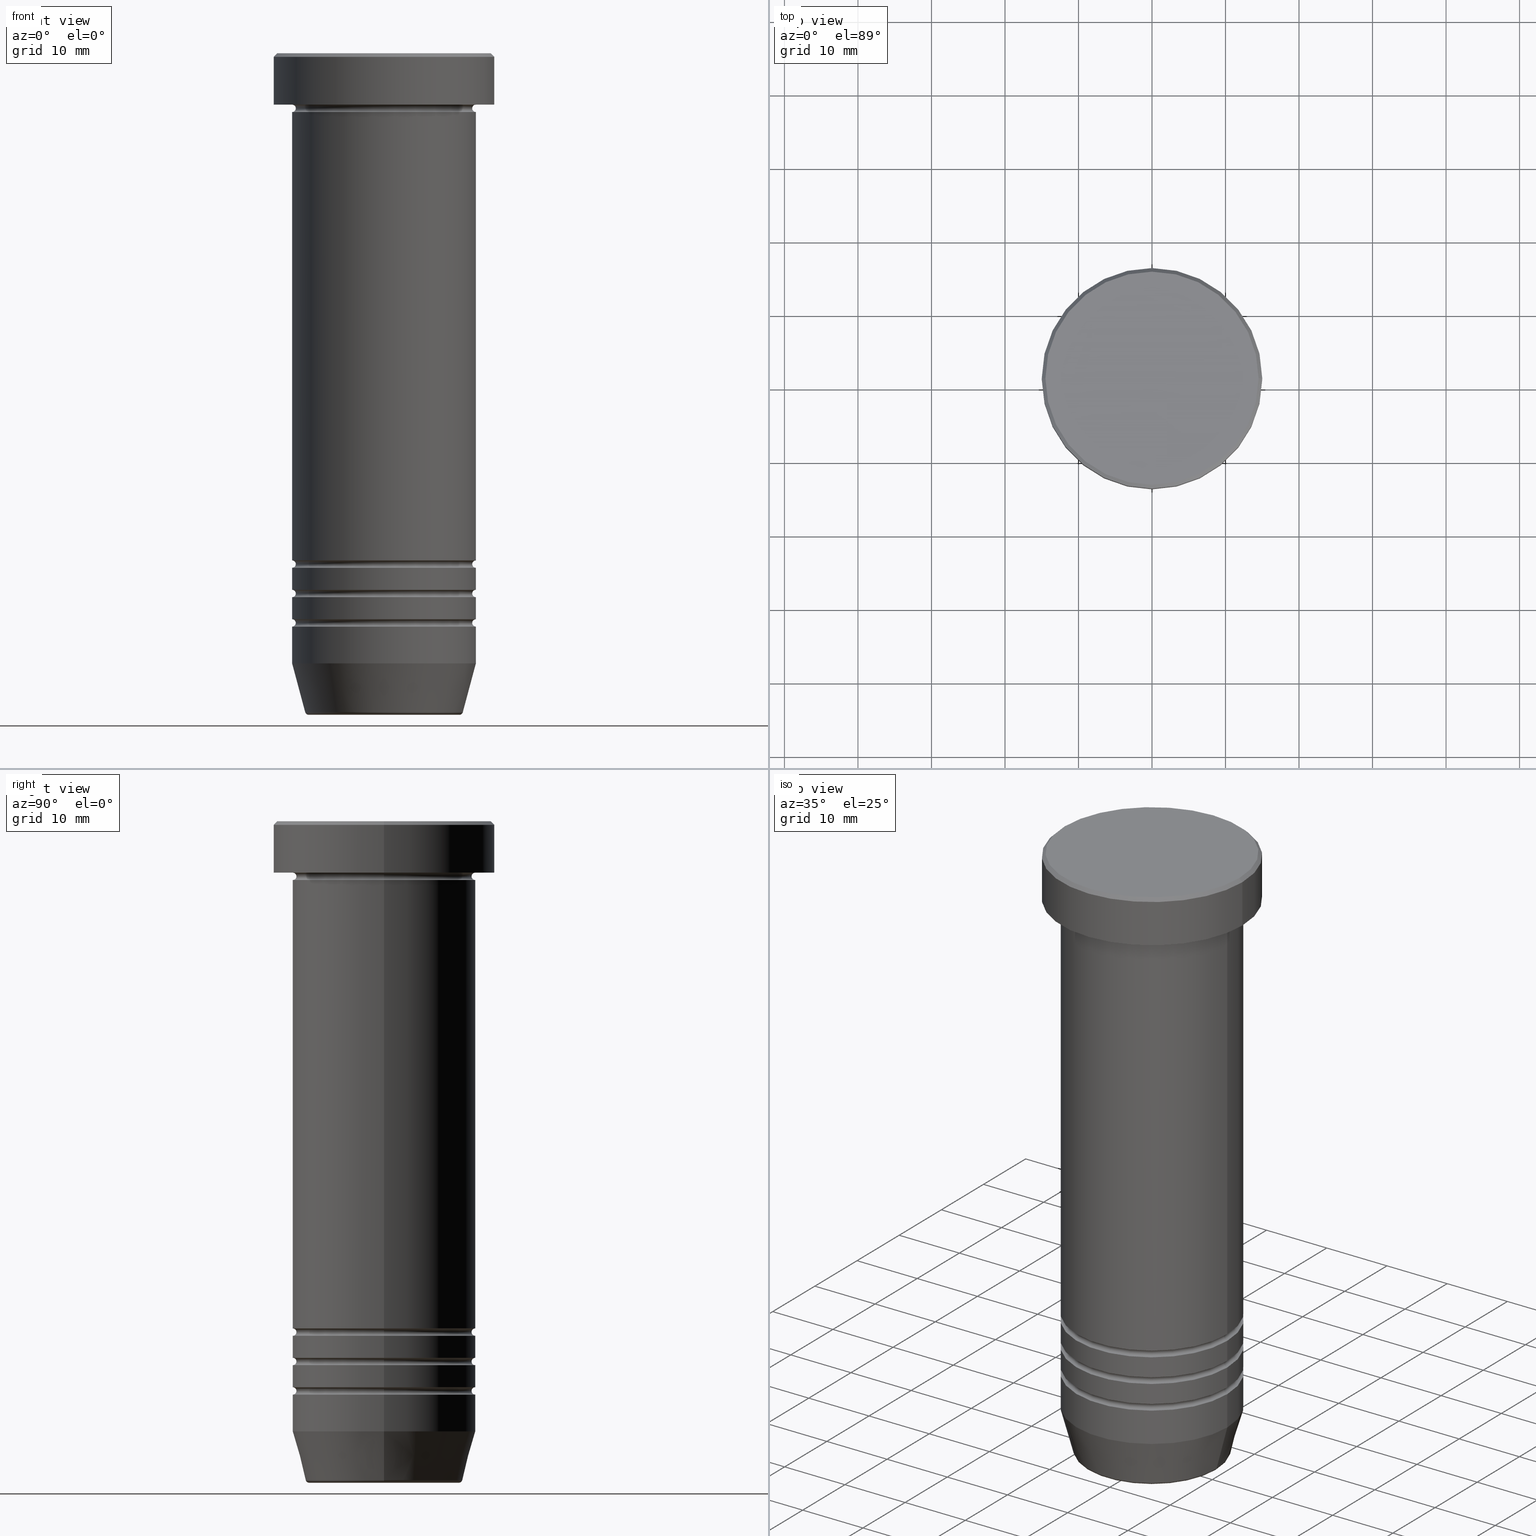
[diagram: canonical four-view strip — front | top / right | iso, engineering-drawing reading convention]
A machine part, canonical four-view strip (front | top / right | iso — engineering-drawing reading convention). The complete STEP part file that produces these views, byte-faithful:
ISO-10303-21;
HEADER;
FILE_DESCRIPTION (( 'STEP AP203' ),
    '1' );
FILE_NAME ('e726.STEP',
    '2024-01-02T20:27:29',
    ( '' ),
    ( '' ),
    'SwSTEP 2.0',
    'SolidWorks 2019',
    '' );
FILE_SCHEMA (( 'CONFIG_CONTROL_DESIGN' ));
ENDSEC;

DATA;
#1 = DIRECTION ( 'NONE',  ( -0.000000000000000000, -0.000000000000000000, 1.000000000000000000 ) ) ;
#2 = DIRECTION ( 'NONE',  ( -0.000000000000000000, -0.000000000000000000, 1.000000000000000000 ) ) ;
#3 = AXIS2_PLACEMENT_3D ( 'NONE', #425, #749, #55 ) ;
#4 = DIRECTION ( 'NONE',  ( -0.000000000000000000, -0.000000000000000000, 1.000000000000000000 ) ) ;
#5 = ORIENTED_EDGE ( 'NONE', *, *, #870, .F. ) ;
#6 = CARTESIAN_POINT ( 'NONE',  ( 12.00000000000000000, 0.000000000000000000, -7.500000000000000000 ) ) ;
#7 = DIRECTION ( 'NONE',  ( -0.000000000000000000, -0.000000000000000000, 1.000000000000000000 ) ) ;
#8 = ORIENTED_EDGE ( 'NONE', *, *, #121, .T. ) ;
#9 = ORIENTED_EDGE ( 'NONE', *, *, #566, .T. ) ;
#10 = CARTESIAN_POINT ( 'NONE',  ( 12.49999999999999645, 0.000000000000000000, -69.49999999999998579 ) ) ;
#11 = ADVANCED_FACE ( 'NONE', ( #210 ), #273, .T. ) ;
#12 = AXIS2_PLACEMENT_3D ( 'NONE', #967, #92, #887 ) ;
#13 = ORIENTED_EDGE ( 'NONE', *, *, #108, .F. ) ;
#14 = AXIS2_PLACEMENT_3D ( 'NONE', #751, #932, #341 ) ;
#15 = FACE_OUTER_BOUND ( 'NONE', #905, .T. ) ;
#16 = DIRECTION ( 'NONE',  ( -1.224646799147353207E-16, 1.000000000000000000, 0.000000000000000000 ) ) ;
#17 = DIRECTION ( 'NONE',  ( -0.000000000000000000, -0.000000000000000000, 1.000000000000000000 ) ) ;
#18 = ADVANCED_FACE ( 'NONE', ( #226 ), #507, .T. ) ;
#19 = ORIENTED_EDGE ( 'NONE', *, *, #435, .T. ) ;
#20 = TOROIDAL_SURFACE ( 'NONE', #876, 12.49999999999999645, 0.5000000000000000000 ) ;
#21 = DIRECTION ( 'NONE',  ( -0.000000000000000000, -0.000000000000000000, 1.000000000000000000 ) ) ;
#22 = DIRECTION ( 'NONE',  ( -0.000000000000000000, -0.000000000000000000, 1.000000000000000000 ) ) ;
#23 = CARTESIAN_POINT ( 'NONE',  ( 12.49999999999999645, 0.000000000000000000, -73.49999999999998579 ) ) ;
#24 = COORDINATED_UNIVERSAL_TIME_OFFSET ( 1, 0, .AHEAD. ) ;
#25 = EDGE_LOOP ( 'NONE', ( #408, #249, #522, #567 ) ) ;
#26 = ORIENTED_EDGE ( 'NONE', *, *, #566, .F. ) ;
#27 = CIRCLE ( 'NONE', #174, 0.5000000000000004441 ) ;
#28 = APPROVAL_PERSON_ORGANIZATION ( #162, #539, #839 ) ;
#29 = VECTOR ( 'NONE', #516, 1000.000000000000000 ) ;
#30 = ADVANCED_FACE ( 'NONE', ( #472 ), #369, .T. ) ;
#31 = DIRECTION ( 'NONE',  ( -1.000000000000000000, 0.000000000000000000, 0.000000000000000000 ) ) ;
#32 = LINE ( 'NONE', #444, #1018 ) ;
#33 = CALENDAR_DATE ( 2024, 2, 1 ) ;
#34 = ORIENTED_EDGE ( 'NONE', *, *, #989, .F. ) ;
#35 = ORIENTED_EDGE ( 'NONE', *, *, #889, .T. ) ;
#36 = CARTESIAN_POINT ( 'NONE',  ( 0.000000000000000000, 0.000000000000000000, -73.49999999999998579 ) ) ;
#37 = ADVANCED_FACE ( 'NONE', ( #549 ), #590, .F. ) ;
#38 = AXIS2_PLACEMENT_3D ( 'NONE', #969, #321, #893 ) ;
#39 = DIRECTION ( 'NONE',  ( 0.000000000000000000, 0.000000000000000000, -1.000000000000000000 ) ) ;
#40 = ORIENTED_EDGE ( 'NONE', *, *, #280, .F. ) ;
#41 = LINE ( 'NONE', #360, #976 ) ;
#42 = EDGE_CURVE ( 'NONE', #353, #1049, #315, .T. ) ;
#43 = CARTESIAN_POINT ( 'NONE',  ( 0.000000000000000000, 0.000000000000000000, 0.000000000000000000 ) ) ;
#44 = DIRECTION ( 'NONE',  ( 0.000000000000000000, 0.000000000000000000, -1.000000000000000000 ) ) ;
#45 = AXIS2_PLACEMENT_3D ( 'NONE', #977, #324, #647 ) ;
#46 = CIRCLE ( 'NONE', #639, 0.5000000000000004441 ) ;
#47 = DATE_AND_TIME ( #708, #851 ) ;
#48 = CARTESIAN_POINT ( 'NONE',  ( -12.50000000000000000, 1.530808498934191521E-15, -77.99999999999998579 ) ) ;
#49 = EDGE_CURVE ( 'NONE', #711, #89, #536, .T. ) ;
#50 = FACE_OUTER_BOUND ( 'NONE', #231, .T. ) ;
#51 = DIRECTION ( 'NONE',  ( 0.000000000000000000, 0.000000000000000000, -1.000000000000000000 ) ) ;
#52 = LINE ( 'NONE', #610, #819 ) ;
#53 = CARTESIAN_POINT ( 'NONE',  ( 12.49999999999999645, 1.530808498934191127E-15, -73.49999999999998579 ) ) ;
#54 = VERTEX_POINT ( 'NONE', #709 ) ;
#55 = DIRECTION ( 'NONE',  ( 1.000000000000000000, 0.000000000000000000, 0.000000000000000000 ) ) ;
#56 = VECTOR ( 'NONE', #690, 1000.000000000000000 ) ;
#57 = ADVANCED_FACE ( 'NONE', ( #1047 ), #874, .T. ) ;
#58 = CARTESIAN_POINT ( 'NONE',  ( -12.49999999999999822, 1.530808498934191324E-15, -72.99999999999998579 ) ) ;
#59 = PERSON_AND_ORGANIZATION_ROLE ( 'design_owner' ) ;
#60 = LINE ( 'NONE', #958, #481 ) ;
#61 = TOROIDAL_SURFACE ( 'NONE', #287, 12.49999999999999645, 0.5000000000000000000 ) ;
#62 = CIRCLE ( 'NONE', #205, 12.50000000000000000 ) ;
#63 = DIRECTION ( 'NONE',  ( -0.000000000000000000, -0.000000000000000000, 1.000000000000000000 ) ) ;
#64 = DIRECTION ( 'NONE',  ( -1.000000000000000000, 0.000000000000000000, 0.000000000000000000 ) ) ;
#65 = ORIENTED_EDGE ( 'NONE', *, *, #680, .T. ) ;
#66 = CARTESIAN_POINT ( 'NONE',  ( -12.49999999999999645, 1.530808498934191127E-15, 0.000000000000000000 ) ) ;
#67 = CARTESIAN_POINT ( 'NONE',  ( -12.50000000000000000, 1.530808498934191521E-15, -7.500000000000000000 ) ) ;
#68 = CIRCLE ( 'NONE', #123, 15.00000000000000000 ) ;
#69 = VECTOR ( 'NONE', #759, 1000.000000000000000 ) ;
#70 = COORDINATED_UNIVERSAL_TIME_OFFSET ( 1, 0, .AHEAD. ) ;
#71 = ORIENTED_EDGE ( 'NONE', *, *, #805, .F. ) ;
#72 = AXIS2_PLACEMENT_3D ( 'NONE', #603, #859, #211 ) ;
#73 = DIRECTION ( 'NONE',  ( -0.000000000000000000, -0.000000000000000000, 1.000000000000000000 ) ) ;
#74 = EDGE_CURVE ( 'NONE', #505, #711, #742, .T. ) ;
#75 = EDGE_LOOP ( 'NONE', ( #268, #173, #633, #825 ) ) ;
#76 = DIRECTION ( 'NONE',  ( 1.000000000000000000, 0.000000000000000000, 0.000000000000000000 ) ) ;
#77 = ORIENTED_EDGE ( 'NONE', *, *, #580, .T. ) ;
#78 = FACE_OUTER_BOUND ( 'NONE', #429, .T. ) ;
#79 = CIRCLE ( 'NONE', #780, 0.5000000000000004441 ) ;
#80 = APPLICATION_CONTEXT ( 'configuration controlled 3d designs of mechanical parts and assemblies' ) ;
#81 = TOROIDAL_SURFACE ( 'NONE', #869, 12.50000000000000000, 0.5000000000000000000 ) ;
#82 = EDGE_CURVE ( 'NONE', #284, #711, #452, .T. ) ;
#83 = DIRECTION ( 'NONE',  ( 1.000000000000000000, 0.000000000000000000, 0.000000000000000000 ) ) ;
#84 = ORIENTED_EDGE ( 'NONE', *, *, #714, .T. ) ;
#85 = DIRECTION ( 'NONE',  ( -0.000000000000000000, -1.000000000000000000, -0.000000000000000000 ) ) ;
#86 = VERTEX_POINT ( 'NONE', #58 ) ;
#87 = CC_DESIGN_DATE_AND_TIME_ASSIGNMENT ( #768, #631, ( #588 ) ) ;
#88 = DIRECTION ( 'NONE',  ( 1.000000000000000000, 0.000000000000000000, 0.000000000000000000 ) ) ;
#89 = VERTEX_POINT ( 'NONE', #48 ) ;
#90 = EDGE_CURVE ( 'NONE', #918, #618, #919, .T. ) ;
#91 = CARTESIAN_POINT ( 'NONE',  ( 0.000000000000000000, 0.000000000000000000, 0.000000000000000000 ) ) ;
#92 = DIRECTION ( 'NONE',  ( -0.000000000000000000, -0.000000000000000000, 1.000000000000000000 ) ) ;
#93 = ORIENTED_EDGE ( 'NONE', *, *, #280, .T. ) ;
#94 = FACE_OUTER_BOUND ( 'NONE', #1012, .T. ) ;
#95 = CARTESIAN_POINT ( 'NONE',  ( 14.50000000000000355, 1.806354028742346196E-15, 0.000000000000000000 ) ) ;
#96 = ORIENTED_EDGE ( 'NONE', *, *, #659, .T. ) ;
#97 = AXIS2_PLACEMENT_3D ( 'NONE', #732, #806, #486 ) ;
#98 = VERTEX_POINT ( 'NONE', #866 ) ;
#99 = AXIS2_PLACEMENT_3D ( 'NONE', #242, #811, #409 ) ;
#100 = DIRECTION ( 'NONE',  ( 1.000000000000000000, 0.000000000000000000, 0.000000000000000000 ) ) ;
#101 = VERTEX_POINT ( 'NONE', #687 ) ;
#102 = CARTESIAN_POINT ( 'NONE',  ( 0.000000000000000000, 0.000000000000000000, -73.49999999999998579 ) ) ;
#103 = AXIS2_PLACEMENT_3D ( 'NONE', #261, #736, #655 ) ;
#104 = LINE ( 'NONE', #910, #606 ) ;
#105 = PERSON_AND_ORGANIZATION_ROLE ( 'design_supplier' ) ;
#106 = EDGE_LOOP ( 'NONE', ( #168, #331, #65, #320 ) ) ;
#107 = ORIENTED_EDGE ( 'NONE', *, *, #674, .F. ) ;
#108 = EDGE_CURVE ( 'NONE', #523, #912, #937, .T. ) ;
#109 = DIRECTION ( 'NONE',  ( -1.000000000000000000, 0.000000000000000000, -0.000000000000000000 ) ) ;
#110 = DIRECTION ( 'NONE',  ( -0.000000000000000000, -0.000000000000000000, 1.000000000000000000 ) ) ;
#111 = DIRECTION ( 'NONE',  ( 1.000000000000000000, 0.000000000000000000, 0.000000000000000000 ) ) ;
#112 = ORIENTED_EDGE ( 'NONE', *, *, #74, .T. ) ;
#113 = ADVANCED_FACE ( 'NONE', ( #291 ), #294, .T. ) ;
#114 = AXIS2_PLACEMENT_3D ( 'NONE', #534, #864, #372 ) ;
#115 = DIRECTION ( 'NONE',  ( -0.000000000000000000, -0.000000000000000000, 1.000000000000000000 ) ) ;
#116 = DIRECTION ( 'NONE',  ( 1.000000000000000000, 0.000000000000000000, 0.000000000000000000 ) ) ;
#117 = DESIGN_CONTEXT ( 'detailed design', #308, 'design' ) ;
#118 = ORIENTED_EDGE ( 'NONE', *, *, #487, .F. ) ;
#119 = DIRECTION ( 'NONE',  ( -0.000000000000000000, -0.000000000000000000, 1.000000000000000000 ) ) ;
#120 = CARTESIAN_POINT ( 'NONE',  ( 0.000000000000000000, 0.000000000000000000, -72.99999999999998579 ) ) ;
#121 = EDGE_CURVE ( 'NONE', #243, #652, #798, .T. ) ;
#122 = MANIFOLD_SOLID_BREP ( 'Zaoblit5', #250 ) ;
#123 = AXIS2_PLACEMENT_3D ( 'NONE', #418, #515, #431 ) ;
#124 = DIRECTION ( 'NONE',  ( -0.000000000000000000, -0.000000000000000000, 1.000000000000000000 ) ) ;
#125 = DIRECTION ( 'NONE',  ( 1.000000000000000000, 0.000000000000000000, 0.000000000000000000 ) ) ;
#126 = CARTESIAN_POINT ( 'NONE',  ( -12.49999999999999289, 1.530808498934190930E-15, -68.99999999999998579 ) ) ;
#127 = CARTESIAN_POINT ( 'NONE',  ( 0.000000000000000000, 0.000000000000000000, -73.49999999999998579 ) ) ;
#128 = EDGE_CURVE ( 'NONE', #827, #833, #380, .T. ) ;
#129 = DIRECTION ( 'NONE',  ( -0.000000000000000000, -0.000000000000000000, 1.000000000000000000 ) ) ;
#130 = ORIENTED_EDGE ( 'NONE', *, *, #875, .F. ) ;
#131 = DIRECTION ( 'NONE',  ( -0.000000000000000000, -0.000000000000000000, 1.000000000000000000 ) ) ;
#132 = VERTEX_POINT ( 'NONE', #739 ) ;
#133 = FACE_OUTER_BOUND ( 'NONE', #25, .T. ) ;
#134 = AXIS2_PLACEMENT_3D ( 'NONE', #493, #85, #410 ) ;
#135 = PRODUCT_DEFINITION_FORMATION_WITH_SPECIFIED_SOURCE ( 'LIBOVOLN�', '', #997, .NOT_KNOWN. ) ;
#136 = CIRCLE ( 'NONE', #921, 12.49999999999999289 ) ;
#137 = CARTESIAN_POINT ( 'NONE',  ( 0.000000000000000000, 0.000000000000000000, 0.000000000000000000 ) ) ;
#138 = APPROVAL_ROLE ( '' ) ;
#139 = DIRECTION ( 'NONE',  ( 0.000000000000000000, 0.000000000000000000, -1.000000000000000000 ) ) ;
#140 = ORIENTED_EDGE ( 'NONE', *, *, #465, .T. ) ;
#141 = CARTESIAN_POINT ( 'NONE',  ( 12.50000000000000000, 0.000000000000000000, 0.000000000000000000 ) ) ;
#142 = DIRECTION ( 'NONE',  ( 0.000000000000000000, 0.000000000000000000, -1.000000000000000000 ) ) ;
#143 = CARTESIAN_POINT ( 'NONE',  ( -10.62435565298213547, 1.301108314342765923E-15, -90.00000000000000000 ) ) ;
#144 = EDGE_CURVE ( 'NONE', #54, #782, #204, .T. ) ;
#145 = FACE_OUTER_BOUND ( 'NONE', #359, .T. ) ;
#146 = CIRCLE ( 'NONE', #820, 12.50000000000000000 ) ;
#147 = DIRECTION ( 'NONE',  ( -0.000000000000000000, -0.000000000000000000, 1.000000000000000000 ) ) ;
#148 = ORIENTED_EDGE ( 'NONE', *, *, #271, .F. ) ;
#149 = PERSON_AND_ORGANIZATION ( #942, #920 ) ;
#150 = CIRCLE ( 'NONE', #134, 0.5000000000000004441 ) ;
#151 = DIRECTION ( 'NONE',  ( -0.000000000000000000, -0.000000000000000000, 1.000000000000000000 ) ) ;
#152 = LOCAL_TIME ( 21, 27, 29.00000000000000000, #24 ) ;
#153 = DIRECTION ( 'NONE',  ( -1.000000000000000000, 1.224646799147353454E-16, 0.000000000000000000 ) ) ;
#154 = AXIS2_PLACEMENT_3D ( 'NONE', #815, #723, #83 ) ;
#155 = EDGE_LOOP ( 'NONE', ( #178, #770, #643, #938 ) ) ;
#156 = DIRECTION ( 'NONE',  ( 1.000000000000000000, 0.000000000000000000, 0.000000000000000000 ) ) ;
#157 = VERTEX_POINT ( 'NONE', #337 ) ;
#158 = CARTESIAN_POINT ( 'NONE',  ( 0.000000000000000000, 0.000000000000000000, 0.000000000000000000 ) ) ;
#159 = ADVANCED_FACE ( 'NONE', ( #478 ), #604, .F. ) ;
#160 = CARTESIAN_POINT ( 'NONE',  ( -10.24069215899265473, 1.254123087356375438E-15, -89.50000000000000000 ) ) ;
#161 = ORIENTED_EDGE ( 'NONE', *, *, #1060, .F. ) ;
#162 = PERSON_AND_ORGANIZATION ( #942, #920 ) ;
#163 = CARTESIAN_POINT ( 'NONE',  ( 0.000000000000000000, 0.000000000000000000, -90.00000000000000000 ) ) ;
#164 = VERTEX_POINT ( 'NONE', #637 ) ;
#165 = DIRECTION ( 'NONE',  ( 0.000000000000000000, 0.000000000000000000, -1.000000000000000000 ) ) ;
#166 = ORIENTED_EDGE ( 'NONE', *, *, #908, .F. ) ;
#167 = DIRECTION ( 'NONE',  ( -0.000000000000000000, -0.000000000000000000, 1.000000000000000000 ) ) ;
#168 = ORIENTED_EDGE ( 'NONE', *, *, #881, .T. ) ;
#169 = DIRECTION ( 'NONE',  ( -1.000000000000000000, 0.000000000000000000, -0.000000000000000000 ) ) ;
#170 = VECTOR ( 'NONE', #1027, 1000.000000000000000 ) ;
#171 = DIRECTION ( 'NONE',  ( -1.000000000000000000, 1.224646799147353454E-16, 0.000000000000000000 ) ) ;
#172 = LOCAL_TIME ( 21, 27, 29.00000000000000000, #754 ) ;
#173 = ORIENTED_EDGE ( 'NONE', *, *, #193, .T. ) ;
#174 = AXIS2_PLACEMENT_3D ( 'NONE', #470, #605, #1020 ) ;
#175 = ORIENTED_EDGE ( 'NONE', *, *, #435, .F. ) ;
#176 = EDGE_CURVE ( 'NONE', #215, #827, #474, .T. ) ;
#177 = CARTESIAN_POINT ( 'NONE',  ( 11.99999999999999645, 0.000000000000000000, -73.49999999999998579 ) ) ;
#178 = ORIENTED_EDGE ( 'NONE', *, *, #860, .T. ) ;
#179 = DIRECTION ( 'NONE',  ( 0.2588190451025213501, 0.000000000000000000, 0.9659258262890680902 ) ) ;
#180 = ORIENTED_EDGE ( 'NONE', *, *, #935, .F. ) ;
#181 = ADVANCED_FACE ( 'NONE', ( #577 ), #251, .F. ) ;
#182 = DIRECTION ( 'NONE',  ( -0.000000000000000000, -0.000000000000000000, 1.000000000000000000 ) ) ;
#183 = CARTESIAN_POINT ( 'NONE',  ( -12.49999999999999645, 1.530808498934191127E-15, -77.49999999999998579 ) ) ;
#184 = EDGE_LOOP ( 'NONE', ( #405, #571, #9, #740 ) ) ;
#185 = CARTESIAN_POINT ( 'NONE',  ( 0.000000000000000000, 0.000000000000000000, -72.99999999999998579 ) ) ;
#186 = CARTESIAN_POINT ( 'NONE',  ( -15.00000000000000000, 1.836970198721029589E-15, -6.999999999999998224 ) ) ;
#187 = DIRECTION ( 'NONE',  ( 0.000000000000000000, 0.000000000000000000, -1.000000000000000000 ) ) ;
#188 = APPROVAL_STATUS ( 'not_yet_approved' ) ;
#189 = AXIS2_PLACEMENT_3D ( 'NONE', #917, #194, #187 ) ;
#190 = TOROIDAL_SURFACE ( 'NONE', #783, 10.24069215899265473, 0.5000000000000000000 ) ;
#191 = DIRECTION ( 'NONE',  ( 1.000000000000000000, 0.000000000000000000, 0.000000000000000000 ) ) ;
#192 = CARTESIAN_POINT ( 'NONE',  ( 0.000000000000000000, 0.000000000000000000, -89.50000000000000000 ) ) ;
#193 = EDGE_CURVE ( 'NONE', #913, #284, #510, .T. ) ;
#194 = DIRECTION ( 'NONE',  ( -0.000000000000000000, -1.000000000000000000, -0.000000000000000000 ) ) ;
#195 = PERSON_AND_ORGANIZATION ( #942, #920 ) ;
#196 = CARTESIAN_POINT ( 'NONE',  ( -12.49999999999999289, 1.530808498934190930E-15, -76.99999999999998579 ) ) ;
#197 = TOROIDAL_SURFACE ( 'NONE', #564, 12.49999999999999645, 0.5000000000000000000 ) ;
#198 = DIRECTION ( 'NONE',  ( 0.000000000000000000, 0.000000000000000000, -1.000000000000000000 ) ) ;
#199 = CIRCLE ( 'NONE', #794, 12.50000000000000000 ) ;
#200 = VERTEX_POINT ( 'NONE', #554 ) ;
#201 = EDGE_CURVE ( 'NONE', #89, #353, #150, .T. ) ;
#202 = ORIENTED_EDGE ( 'NONE', *, *, #989, .T. ) ;
#203 = DIRECTION ( 'NONE',  ( -0.000000000000000000, -0.000000000000000000, 1.000000000000000000 ) ) ;
#204 = CIRCLE ( 'NONE', #457, 0.5000000000000004441 ) ;
#205 = AXIS2_PLACEMENT_3D ( 'NONE', #589, #832, #847 ) ;
#206 = EDGE_CURVE ( 'NONE', #652, #243, #981, .T. ) ;
#207 = CARTESIAN_POINT ( 'NONE',  ( 0.000000000000000000, 0.000000000000000000, -7.500000000000000000 ) ) ;
#208 = DIRECTION ( 'NONE',  ( 1.000000000000000000, 0.000000000000000000, 0.000000000000000000 ) ) ;
#209 = ORIENTED_EDGE ( 'NONE', *, *, #941, .T. ) ;
#210 = FACE_OUTER_BOUND ( 'NONE', #248, .T. ) ;
#211 = DIRECTION ( 'NONE',  ( 1.000000000000000000, 0.000000000000000000, 0.000000000000000000 ) ) ;
#212 = DIRECTION ( 'NONE',  ( 1.000000000000000000, 0.000000000000000000, 0.000000000000000000 ) ) ;
#213 = CIRCLE ( 'NONE', #3, 12.50000000000000000 ) ;
#214 = FACE_OUTER_BOUND ( 'NONE', #290, .T. ) ;
#215 = VERTEX_POINT ( 'NONE', #393 ) ;
#216 = DIRECTION ( 'NONE',  ( 1.000000000000000000, 0.000000000000000000, 0.000000000000000000 ) ) ;
#217 = DIRECTION ( 'NONE',  ( 1.000000000000000000, 0.000000000000000000, 0.000000000000000000 ) ) ;
#218 = ORIENTED_EDGE ( 'NONE', *, *, #496, .F. ) ;
#219 = DIRECTION ( 'NONE',  ( -0.000000000000000000, -0.000000000000000000, 1.000000000000000000 ) ) ;
#220 = DIRECTION ( 'NONE',  ( 0.000000000000000000, 0.000000000000000000, -1.000000000000000000 ) ) ;
#221 = CIRCLE ( 'NONE', #1057, 12.49999999999999289 ) ;
#222 = ADVANCED_FACE ( 'NONE', ( #713 ), #541, .F. ) ;
#223 = DIRECTION ( 'NONE',  ( 1.000000000000000000, 0.000000000000000000, 0.000000000000000000 ) ) ;
#224 = MECHANICAL_CONTEXT ( 'NONE', #80, 'mechanical' ) ;
#225 = CYLINDRICAL_SURFACE ( 'NONE', #669, 12.50000000000000000 ) ;
#226 = FACE_OUTER_BOUND ( 'NONE', #681, .T. ) ;
#227 = EDGE_CURVE ( 'NONE', #523, #803, #1054, .T. ) ;
#228 = ORIENTED_EDGE ( 'NONE', *, *, #128, .T. ) ;
#229 = APPROVAL_ROLE ( '' ) ;
#230 = DIRECTION ( 'NONE',  ( 1.000000000000000000, 0.000000000000000000, 0.000000000000000000 ) ) ;
#231 = EDGE_LOOP ( 'NONE', ( #396, #671, #285, #858 ) ) ;
#232 = LINE ( 'NONE', #66, #821 ) ;
#233 = CALENDAR_DATE ( 2024, 2, 1 ) ;
#234 = EDGE_CURVE ( 'NONE', #259, #913, #720, .T. ) ;
#235 = ORIENTED_EDGE ( 'NONE', *, *, #128, .F. ) ;
#236 = AXIS2_PLACEMENT_3D ( 'NONE', #1055, #895, #165 ) ;
#237 = AXIS2_PLACEMENT_3D ( 'NONE', #660, #581, #586 ) ;
#238 = CARTESIAN_POINT ( 'NONE',  ( -12.49999999999999645, 1.530808498934191127E-15, 0.000000000000000000 ) ) ;
#239 = DIRECTION ( 'NONE',  ( -1.000000000000000000, 0.000000000000000000, 0.000000000000000000 ) ) ;
#240 = CARTESIAN_POINT ( 'NONE',  ( 11.99999999999999645, 0.000000000000000000, -77.49999999999998579 ) ) ;
#241 = EDGE_LOOP ( 'NONE', ( #218, #939, #93, #354 ) ) ;
#242 = CARTESIAN_POINT ( 'NONE',  ( 0.000000000000000000, 0.000000000000000000, -82.99999999999998579 ) ) ;
#243 = VERTEX_POINT ( 'NONE', #247 ) ;
#244 = FACE_OUTER_BOUND ( 'NONE', #877, .T. ) ;
#245 = ORIENTED_EDGE ( 'NONE', *, *, #791, .F. ) ;
#246 = ADVANCED_FACE ( 'NONE', ( #666 ), #61, .F. ) ;
#247 = CARTESIAN_POINT ( 'NONE',  ( -12.50000000000000000, 1.530808498934191521E-15, -22.50000000000000000 ) ) ;
#248 = EDGE_LOOP ( 'NONE', ( #477, #865, #327, #482 ) ) ;
#249 = ORIENTED_EDGE ( 'NONE', *, *, #144, .T. ) ;
#250 = CLOSED_SHELL ( 'NONE', ( #775, #929, #837, #357, #352, #392, #615, #608, #738, #915, #311, #455, #57, #509, #758, #1046, #296, #524, #11, #18, #181, #37, #246, #719, #850, #551 ) ) ;
#251 = TOROIDAL_SURFACE ( 'NONE', #12, 12.49999999999999645, 0.5000000000000000000 ) ;
#252 = AXIS2_PLACEMENT_3D ( 'NONE', #158, #1, #318 ) ;
#253 = CC_DESIGN_APPROVAL ( #707, ( #994 ) ) ;
#254 = ORIENTED_EDGE ( 'NONE', *, *, #651, .T. ) ;
#255 = EDGE_CURVE ( 'NONE', #54, #523, #834, .T. ) ;
#256 = ORIENTED_EDGE ( 'NONE', *, *, #674, .T. ) ;
#257 = DIRECTION ( 'NONE',  ( 1.000000000000000000, 0.000000000000000000, 0.000000000000000000 ) ) ;
#258 = CARTESIAN_POINT ( 'NONE',  ( -15.00000000000000000, 1.836970198721029589E-15, -0.4999999999999970024 ) ) ;
#259 = VERTEX_POINT ( 'NONE', #856 ) ;
#260 = CIRCLE ( 'NONE', #355, 12.50000000000000000 ) ;
#261 = CARTESIAN_POINT ( 'NONE',  ( 0.000000000000000000, 0.000000000000000000, -77.49999999999998579 ) ) ;
#262 = CARTESIAN_POINT ( 'NONE',  ( 0.000000000000000000, 0.000000000000000000, -73.49999999999998579 ) ) ;
#263 = DIRECTION ( 'NONE',  ( 0.000000000000000000, 0.000000000000000000, -1.000000000000000000 ) ) ;
#264 = EDGE_CURVE ( 'NONE', #451, #284, #267, .T. ) ;
#265 = CARTESIAN_POINT ( 'NONE',  ( 12.49999999999999645, 1.530808498934191127E-15, -69.49999999999998579 ) ) ;
#266 = PERSON_AND_ORGANIZATION_ROLE ( 'creator' ) ;
#267 = CIRCLE ( 'NONE', #1001, 10.72365507213718416 ) ;
#268 = ORIENTED_EDGE ( 'NONE', *, *, #668, .F. ) ;
#269 = AXIS2_PLACEMENT_3D ( 'NONE', #521, #415, #916 ) ;
#270 = DIRECTION ( 'NONE',  ( -0.000000000000000000, -0.000000000000000000, 1.000000000000000000 ) ) ;
#271 = EDGE_CURVE ( 'NONE', #215, #1033, #886, .T. ) ;
#272 = ORIENTED_EDGE ( 'NONE', *, *, #812, .T. ) ;
#273 = CYLINDRICAL_SURFACE ( 'NONE', #654, 12.50000000000000000 ) ;
#274 = APPROVAL_PERSON_ORGANIZATION ( #949, #728, #138 ) ;
#275 = DIRECTION ( 'NONE',  ( 1.000000000000000000, 0.000000000000000000, 0.000000000000000000 ) ) ;
#276 = AXIS2_PLACEMENT_3D ( 'NONE', #678, #219, #936 ) ;
#277 = ORIENTED_EDGE ( 'NONE', *, *, #700, .F. ) ;
#278 = FACE_OUTER_BOUND ( 'NONE', #1011, .T. ) ;
#279 = FACE_OUTER_BOUND ( 'NONE', #934, .T. ) ;
#280 = EDGE_CURVE ( 'NONE', #555, #652, #513, .T. ) ;
#281 = ORIENTED_EDGE ( 'NONE', *, *, #340, .F. ) ;
#282 = DIRECTION ( 'NONE',  ( 1.000000000000000000, 0.000000000000000000, 0.000000000000000000 ) ) ;
#283 = CARTESIAN_POINT ( 'NONE',  ( 0.000000000000000000, 0.000000000000000000, -22.50000000000000000 ) ) ;
#284 = VERTEX_POINT ( 'NONE', #753 ) ;
#285 = ORIENTED_EDGE ( 'NONE', *, *, #74, .F. ) ;
#286 = EDGE_CURVE ( 'NONE', #101, #488, #32, .T. ) ;
#287 = AXIS2_PLACEMENT_3D ( 'NONE', #262, #925, #439 ) ;
#288 = CONICAL_SURFACE ( 'NONE', #888, 14.50000000000000355, 0.7853981633974466137 ) ;
#289 = CARTESIAN_POINT ( 'NONE',  ( 0.000000000000000000, 0.000000000000000000, -7.500000000000000000 ) ) ;
#290 = EDGE_LOOP ( 'NONE', ( #777, #667, #107, #698 ) ) ;
#291 = FACE_OUTER_BOUND ( 'NONE', #184, .T. ) ;
#292 = AXIS2_PLACEMENT_3D ( 'NONE', #699, #115, #282 ) ;
#293 = FACE_OUTER_BOUND ( 'NONE', #641, .T. ) ;
#294 = CYLINDRICAL_SURFACE ( 'NONE', #902, 15.00000000000000000 ) ;
#295 = CARTESIAN_POINT ( 'NONE',  ( 0.000000000000000000, 0.000000000000000000, -8.000000000000000000 ) ) ;
#296 = ADVANCED_FACE ( 'NONE', ( #279 ), #599, .F. ) ;
#297 = DIRECTION ( 'NONE',  ( -0.000000000000000000, -0.000000000000000000, 1.000000000000000000 ) ) ;
#298 = ORIENTED_EDGE ( 'NONE', *, *, #755, .F. ) ;
#299 = AXIS2_PLACEMENT_3D ( 'NONE', #961, #862, #125 ) ;
#300 = AXIS2_PLACEMENT_3D ( 'NONE', #305, #147, #799 ) ;
#301 = CC_DESIGN_APPROVAL ( #539, ( #135 ) ) ;
#302 = EDGE_CURVE ( 'NONE', #857, #353, #79, .T. ) ;
#303 = EDGE_LOOP ( 'NONE', ( #813, #325 ) ) ;
#304 = DIRECTION ( 'NONE',  ( -0.000000000000000000, -0.000000000000000000, 1.000000000000000000 ) ) ;
#305 = CARTESIAN_POINT ( 'NONE',  ( 0.000000000000000000, 0.000000000000000000, 0.000000000000000000 ) ) ;
#306 = ADVANCED_FACE ( 'NONE', ( #776 ), #225, .T. ) ;
#307 = DIRECTION ( 'NONE',  ( 1.000000000000000000, 0.000000000000000000, 0.000000000000000000 ) ) ;
#308 = APPLICATION_CONTEXT ( 'configuration controlled 3d designs of mechanical parts and assemblies' ) ;
#309 = ORIENTED_EDGE ( 'NONE', *, *, #42, .F. ) ;
#310 = DIRECTION ( 'NONE',  ( -0.000000000000000000, -0.000000000000000000, 1.000000000000000000 ) ) ;
#311 = ADVANCED_FACE ( 'NONE', ( #1015 ), #361, .T. ) ;
#312 = DIRECTION ( 'NONE',  ( 0.000000000000000000, 0.000000000000000000, 1.000000000000000000 ) ) ;
#313 = FACE_OUTER_BOUND ( 'NONE', #560, .T. ) ;
#314 = ORIENTED_EDGE ( 'NONE', *, *, #975, .T. ) ;
#315 = CIRCLE ( 'NONE', #572, 11.99999999999999645 ) ;
#316 =( GEOMETRIC_REPRESENTATION_CONTEXT ( 3 ) GLOBAL_UNCERTAINTY_ASSIGNED_CONTEXT ( ( #933 ) ) GLOBAL_UNIT_ASSIGNED_CONTEXT ( ( #397, #973, #814 ) ) REPRESENTATION_CONTEXT ( 'NONE', 'WORKASPACE' ) );
#317 = AXIS2_PLACEMENT_3D ( 'NONE', #960, #310, #642 ) ;
#318 = DIRECTION ( 'NONE',  ( 1.000000000000000000, 0.000000000000000000, 0.000000000000000000 ) ) ;
#319 = DIRECTION ( 'NONE',  ( 0.000000000000000000, 0.000000000000000000, -1.000000000000000000 ) ) ;
#320 = ORIENTED_EDGE ( 'NONE', *, *, #533, .F. ) ;
#321 = DIRECTION ( 'NONE',  ( 0.000000000000000000, 0.000000000000000000, -1.000000000000000000 ) ) ;
#322 = ORIENTED_EDGE ( 'NONE', *, *, #975, .F. ) ;
#323 = CYLINDRICAL_SURFACE ( 'NONE', #252, 12.49999999999999645 ) ;
#324 = DIRECTION ( 'NONE',  ( 0.000000000000000000, 0.000000000000000000, -1.000000000000000000 ) ) ;
#325 = ORIENTED_EDGE ( 'NONE', *, *, #1060, .T. ) ;
#326 = CIRCLE ( 'NONE', #931, 12.00000000000000000 ) ;
#327 = ORIENTED_EDGE ( 'NONE', *, *, #286, .T. ) ;
#328 = FACE_OUTER_BOUND ( 'NONE', #241, .T. ) ;
#329 = EDGE_CURVE ( 'NONE', #86, #733, #52, .T. ) ;
#330 = DIRECTION ( 'NONE',  ( 1.000000000000000000, 0.000000000000000000, 0.000000000000000000 ) ) ;
#331 = ORIENTED_EDGE ( 'NONE', *, *, #547, .T. ) ;
#332 = EDGE_LOOP ( 'NONE', ( #416, #447, #988, #582 ) ) ;
#333 = DIRECTION ( 'NONE',  ( -0.000000000000000000, -0.000000000000000000, 1.000000000000000000 ) ) ;
#334 = CARTESIAN_POINT ( 'NONE',  ( 0.000000000000000000, 0.000000000000000000, 0.000000000000000000 ) ) ;
#335 = AXIS2_PLACEMENT_3D ( 'NONE', #658, #7, #330 ) ;
#336 = CIRCLE ( 'NONE', #269, 11.99999999999999645 ) ;
#337 = CARTESIAN_POINT ( 'NONE',  ( -12.50000000000000000, 0.000000000000000000, -6.999999999999999112 ) ) ;
#338 = DIRECTION ( 'NONE',  ( -1.000000000000000000, 1.224646799147353454E-16, 0.000000000000000000 ) ) ;
#339 = AXIS2_PLACEMENT_3D ( 'NONE', #872, #597, #375 ) ;
#340 = EDGE_CURVE ( 'NONE', #928, #200, #947, .T. ) ;
#341 = DIRECTION ( 'NONE',  ( 1.000000000000000000, 0.000000000000000000, 0.000000000000000000 ) ) ;
#342 = APPROVAL_DATE_TIME ( #1010, #539 ) ;
#343 = ORIENTED_EDGE ( 'NONE', *, *, #469, .F. ) ;
#344 = EDGE_CURVE ( 'NONE', #54, #157, #27, .T. ) ;
#345 = DIRECTION ( 'NONE',  ( 0.000000000000000000, -1.000000000000000000, 0.000000000000000000 ) ) ;
#346 = ORIENTED_EDGE ( 'NONE', *, *, #870, .T. ) ;
#347 = AXIS2_PLACEMENT_3D ( 'NONE', #1038, #124, #1031 ) ;
#348 = EDGE_LOOP ( 'NONE', ( #845, #883, #706, #459 ) ) ;
#349 = CIRCLE ( 'NONE', #854, 12.50000000000000000 ) ;
#350 = DIRECTION ( 'NONE',  ( 0.000000000000000000, 0.000000000000000000, -1.000000000000000000 ) ) ;
#351 = FACE_OUTER_BOUND ( 'NONE', #332, .T. ) ;
#352 = ADVANCED_FACE ( 'NONE', ( #943 ), #1002, .F. ) ;
#353 = VERTEX_POINT ( 'NONE', #1026 ) ;
#354 = ORIENTED_EDGE ( 'NONE', *, *, #121, .F. ) ;
#355 = AXIS2_PLACEMENT_3D ( 'NONE', #990, #841, #846 ) ;
#356 = DIRECTION ( 'NONE',  ( 1.000000000000000000, 0.000000000000000000, 0.000000000000000000 ) ) ;
#357 = ADVANCED_FACE ( 'NONE', ( #214 ), #835, .F. ) ;
#358 = EDGE_LOOP ( 'NONE', ( #570, #982, #202, #600 ) ) ;
#359 = EDGE_LOOP ( 'NONE', ( #385, #840 ) ) ;
#360 = CARTESIAN_POINT ( 'NONE',  ( 12.49999999999999645, 0.000000000000000000, 0.000000000000000000 ) ) ;
#361 = CYLINDRICAL_SURFACE ( 'NONE', #347, 12.50000000000000000 ) ;
#362 = ORIENTED_EDGE ( 'NONE', *, *, #601, .T. ) ;
#363 = CLOSED_SHELL ( 'NONE', ( #1029, #387, #955, #766, #946, #413, #30, #113, #796, #306, #159, #222, #640 ) ) ;
#364 = DIRECTION ( 'NONE',  ( 1.000000000000000000, 0.000000000000000000, 0.000000000000000000 ) ) ;
#365 = AXIS2_PLACEMENT_3D ( 'NONE', #1032, #297, #540 ) ;
#366 = VECTOR ( 'NONE', #906, 1000.000000000000000 ) ;
#367 = CIRCLE ( 'NONE', #514, 10.72365507213718416 ) ;
#368 = CARTESIAN_POINT ( 'NONE',  ( 0.000000000000000000, 0.000000000000000000, -7.500000000000000000 ) ) ;
#369 = PLANE ( 'NONE',  #852 ) ;
#370 = EDGE_CURVE ( 'NONE', #132, #98, #349, .T. ) ;
#371 = CARTESIAN_POINT ( 'NONE',  ( 11.99999999999999645, 0.000000000000000000, -69.49999999999998579 ) ) ;
#372 = DIRECTION ( 'NONE',  ( 1.000000000000000000, 0.000000000000000000, 0.000000000000000000 ) ) ;
#373 = AXIS2_PLACEMENT_3D ( 'NONE', #207, #119, #537 ) ;
#374 = DIRECTION ( 'NONE',  ( -0.000000000000000000, -0.000000000000000000, 1.000000000000000000 ) ) ;
#375 = DIRECTION ( 'NONE',  ( 1.000000000000000000, 0.000000000000000000, 0.000000000000000000 ) ) ;
#376 = EDGE_CURVE ( 'NONE', #607, #663, #512, .T. ) ;
#377 = DIRECTION ( 'NONE',  ( -0.000000000000000000, -0.000000000000000000, 1.000000000000000000 ) ) ;
#378 = DIRECTION ( 'NONE',  ( -0.000000000000000000, -0.000000000000000000, 1.000000000000000000 ) ) ;
#379 = CARTESIAN_POINT ( 'NONE',  ( 0.000000000000000000, 0.000000000000000000, -77.49999999999998579 ) ) ;
#380 = CIRCLE ( 'NONE', #701, 0.5000000000000004441 ) ;
#381 = APPLICATION_PROTOCOL_DEFINITION ( 'international standard', 'config_control_design', 1994, #308 ) ;
#382 = VECTOR ( 'NONE', #73, 1000.000000000000000 ) ;
#383 = CARTESIAN_POINT ( 'NONE',  ( -12.50000000000000000, 1.530808498934191521E-15, -69.99999999999998579 ) ) ;
#384 = AXIS2_PLACEMENT_3D ( 'NONE', #538, #51, #779 ) ;
#385 = ORIENTED_EDGE ( 'NONE', *, *, #234, .T. ) ;
#386 = CARTESIAN_POINT ( 'NONE',  ( 0.000000000000000000, 0.000000000000000000, -77.49999999999998579 ) ) ;
#387 = ADVANCED_FACE ( 'NONE', ( #293 ), #81, .F. ) ;
#388 = DIRECTION ( 'NONE',  ( 0.000000000000000000, -0.000000000000000000, 1.000000000000000000 ) ) ;
#389 = COORDINATED_UNIVERSAL_TIME_OFFSET ( 1, 0, .AHEAD. ) ;
#390 = ORIENTED_EDGE ( 'NONE', *, *, #370, .T. ) ;
#391 = CIRCLE ( 'NONE', #662, 12.50000000000000000 ) ;
#392 = ADVANCED_FACE ( 'NONE', ( #781 ), #458, .F. ) ;
#393 = CARTESIAN_POINT ( 'NONE',  ( -12.50000000000000000, 1.530808498934191521E-15, -73.99999999999998579 ) ) ;
#394 = CALENDAR_DATE ( 2024, 2, 1 ) ;
#395 = DIRECTION ( 'NONE',  ( 1.000000000000000000, 0.000000000000000000, 0.000000000000000000 ) ) ;
#396 = ORIENTED_EDGE ( 'NONE', *, *, #264, .T. ) ;
#397 =( LENGTH_UNIT ( ) NAMED_UNIT ( * ) SI_UNIT ( .MILLI., .METRE. ) );
#398 = DIRECTION ( 'NONE',  ( 1.000000000000000000, 0.000000000000000000, 0.000000000000000000 ) ) ;
#399 = ORIENTED_EDGE ( 'NONE', *, *, #370, .F. ) ;
#400 = AXIS2_PLACEMENT_3D ( 'NONE', #160, #986, #171 ) ;
#401 = AXIS2_PLACEMENT_3D ( 'NONE', #1051, #312, #626 ) ;
#402 = TOROIDAL_SURFACE ( 'NONE', #686, 12.49999999999999645, 0.5000000000000000000 ) ;
#403 = LINE ( 'NONE', #238, #382 ) ;
#404 = CARTESIAN_POINT ( 'NONE',  ( 0.000000000000000000, 0.000000000000000000, -7.500000000000000000 ) ) ;
#405 = ORIENTED_EDGE ( 'NONE', *, *, #651, .F. ) ;
#406 = EDGE_CURVE ( 'NONE', #928, #555, #221, .T. ) ;
#407 = CYLINDRICAL_SURFACE ( 'NONE', #828, 12.50000000000000000 ) ;
#408 = ORIENTED_EDGE ( 'NONE', *, *, #255, .F. ) ;
#409 = DIRECTION ( 'NONE',  ( 1.000000000000000000, 0.000000000000000000, 0.000000000000000000 ) ) ;
#410 = DIRECTION ( 'NONE',  ( 0.000000000000000000, 0.000000000000000000, -1.000000000000000000 ) ) ;
#411 = ORIENTED_EDGE ( 'NONE', *, *, #255, .T. ) ;
#412 = CARTESIAN_POINT ( 'NONE',  ( 0.000000000000000000, 15.00000000000000000, -6.999999999999999112 ) ) ;
#413 = ADVANCED_FACE ( 'NONE', ( #78 ), #1045, .T. ) ;
#414 = AXIS2_PLACEMENT_3D ( 'NONE', #778, #44, #786 ) ;
#415 = DIRECTION ( 'NONE',  ( 0.000000000000000000, 0.000000000000000000, -1.000000000000000000 ) ) ;
#416 = ORIENTED_EDGE ( 'NONE', *, *, #547, .F. ) ;
#417 = ORIENTED_EDGE ( 'NONE', *, *, #90, .F. ) ;
#418 = CARTESIAN_POINT ( 'NONE',  ( 0.000000000000000000, 0.000000000000000000, -0.4999999999999970024 ) ) ;
#419 = DIRECTION ( 'NONE',  ( 0.000000000000000000, 0.000000000000000000, -1.000000000000000000 ) ) ;
#420 = VECTOR ( 'NONE', #998, 1000.000000000000000 ) ;
#421 = CIRCLE ( 'NONE', #1019, 0.5000000000000004441 ) ;
#422 = EDGE_CURVE ( 'NONE', #867, #1049, #46, .T. ) ;
#423 = AXIS2_PLACEMENT_3D ( 'NONE', #36, #220, #116 ) ;
#424 = EDGE_LOOP ( 'NONE', ( #676, #907, #96, #818 ) ) ;
#425 = CARTESIAN_POINT ( 'NONE',  ( 0.000000000000000000, 0.000000000000000000, -77.99999999999998579 ) ) ;
#426 = CYLINDRICAL_SURFACE ( 'NONE', #14, 12.50000000000000000 ) ;
#427 = CARTESIAN_POINT ( 'NONE',  ( 0.000000000000000000, 0.000000000000000000, -89.62940952255127058 ) ) ;
#428 = CC_DESIGN_PERSON_AND_ORGANIZATION_ASSIGNMENT ( #149, #802, ( #994 ) ) ;
#429 = EDGE_LOOP ( 'NONE', ( #399, #5 ) ) ;
#430 = TOROIDAL_SURFACE ( 'NONE', #38, 12.49999999999999645, 0.5000000000000000000 ) ;
#431 = DIRECTION ( 'NONE',  ( 1.000000000000000000, 0.000000000000000000, 0.000000000000000000 ) ) ;
#432 = CARTESIAN_POINT ( 'NONE',  ( 12.50000000000000000, 0.000000000000000000, -22.50000000000000000 ) ) ;
#433 = SECURITY_CLASSIFICATION_LEVEL ( 'unclassified' ) ;
#434 = ORIENTED_EDGE ( 'NONE', *, *, #376, .F. ) ;
#435 = EDGE_CURVE ( 'NONE', #962, #857, #136, .T. ) ;
#436 = LINE ( 'NONE', #904, #69 ) ;
#437 = DIRECTION ( 'NONE',  ( 0.000000000000000000, 0.000000000000000000, -1.000000000000000000 ) ) ;
#438 = AXIS2_PLACEMENT_3D ( 'NONE', #468, #139, #64 ) ;
#439 = DIRECTION ( 'NONE',  ( 1.000000000000000000, 0.000000000000000000, 0.000000000000000000 ) ) ;
#440 = EDGE_LOOP ( 'NONE', ( #235, #974, #579, #362 ) ) ;
#441 = VECTOR ( 'NONE', #110, 1000.000000000000000 ) ;
#442 = VECTOR ( 'NONE', #179, 1000.000000000000000 ) ;
#443 = CARTESIAN_POINT ( 'NONE',  ( 0.000000000000000000, 0.000000000000000000, -0.4999999999999970024 ) ) ;
#444 = CARTESIAN_POINT ( 'NONE',  ( 12.50000000000000000, 0.000000000000000000, 0.000000000000000000 ) ) ;
#445 = PERSON_AND_ORGANIZATION ( #942, #920 ) ;
#446 = EDGE_LOOP ( 'NONE', ( #245, #434, #272, #71 ) ) ;
#447 = ORIENTED_EDGE ( 'NONE', *, *, #1039, .T. ) ;
#448 = DIRECTION ( 'NONE',  ( -0.000000000000000000, -0.000000000000000000, 1.000000000000000000 ) ) ;
#449 = CARTESIAN_POINT ( 'NONE',  ( 0.000000000000000000, 0.000000000000000000, -89.62940952255127058 ) ) ;
#450 = DIRECTION ( 'NONE',  ( 1.000000000000000000, 0.000000000000000000, 0.000000000000000000 ) ) ;
#451 = VERTEX_POINT ( 'NONE', #485 ) ;
#452 = LINE ( 'NONE', #143, #170 ) ;
#453 = DIRECTION ( 'NONE',  ( 1.000000000000000000, 0.000000000000000000, 0.000000000000000000 ) ) ;
#454 = CARTESIAN_POINT ( 'NONE',  ( 0.000000000000000000, 0.000000000000000000, 0.000000000000000000 ) ) ;
#455 = ADVANCED_FACE ( 'NONE', ( #726 ), #323, .T. ) ;
#456 = DIRECTION ( 'NONE',  ( -1.224646799147353207E-16, 1.000000000000000000, 0.000000000000000000 ) ) ;
#457 = AXIS2_PLACEMENT_3D ( 'NONE', #67, #980, #153 ) ;
#458 = TOROIDAL_SURFACE ( 'NONE', #656, 12.49999999999999645, 0.5000000000000000000 ) ;
#459 = ORIENTED_EDGE ( 'NONE', *, *, #812, .F. ) ;
#460 = FACE_OUTER_BOUND ( 'NONE', #348, .T. ) ;
#461 = AXIS2_PLACEMENT_3D ( 'NONE', #127, #1025, #620 ) ;
#462 = DIRECTION ( 'NONE',  ( -0.000000000000000000, -0.000000000000000000, 1.000000000000000000 ) ) ;
#463 = SHAPE_DEFINITION_REPRESENTATION ( #750, #884 ) ;
#464 = CARTESIAN_POINT ( 'NONE',  ( 0.000000000000000000, 0.000000000000000000, -6.999999999999998224 ) ) ;
#465 = EDGE_CURVE ( 'NONE', #663, #607, #903, .T. ) ;
#466 = CARTESIAN_POINT ( 'NONE',  ( -12.50000000000000000, 1.530808498934191521E-15, -82.99999999999998579 ) ) ;
#467 = CARTESIAN_POINT ( 'NONE',  ( 0.000000000000000000, 0.000000000000000000, -77.49999999999998579 ) ) ;
#468 = CARTESIAN_POINT ( 'NONE',  ( 0.000000000000000000, 0.000000000000000000, -77.49999999999998579 ) ) ;
#469 = EDGE_CURVE ( 'NONE', #98, #782, #971, .T. ) ;
#470 = CARTESIAN_POINT ( 'NONE',  ( -12.50000000000000000, 0.000000000000000000, -7.500000000000000000 ) ) ;
#471 = APPROVAL_STATUS ( 'not_yet_approved' ) ;
#472 = FACE_OUTER_BOUND ( 'NONE', #725, .T. ) ;
#473 = EDGE_LOOP ( 'NONE', ( #390, #625, #801, #1004 ) ) ;
#474 = CIRCLE ( 'NONE', #966, 12.50000000000000000 ) ;
#475 = AXIS2_PLACEMENT_3D ( 'NONE', #91, #203, #100 ) ;
#476 = EDGE_CURVE ( 'NONE', #451, #505, #636, .T. ) ;
#477 = ORIENTED_EDGE ( 'NONE', *, *, #329, .F. ) ;
#478 = FACE_OUTER_BOUND ( 'NONE', #764, .T. ) ;
#479 = CYLINDRICAL_SURFACE ( 'NONE', #154, 12.49999999999999645 ) ;
#480 = ORIENTED_EDGE ( 'NONE', *, *, #730, .T. ) ;
#481 = VECTOR ( 'NONE', #898, 1000.000000000000000 ) ;
#482 = ORIENTED_EDGE ( 'NONE', *, *, #881, .F. ) ;
#483 = FACE_OUTER_BOUND ( 'NONE', #473, .T. ) ;
#484 = ORIENTED_EDGE ( 'NONE', *, *, #344, .F. ) ;
#485 = CARTESIAN_POINT ( 'NONE',  ( 10.72365507213718416, 0.000000000000000000, -89.62940952255127058 ) ) ;
#486 = DIRECTION ( 'NONE',  ( 1.000000000000000000, 0.000000000000000000, 0.000000000000000000 ) ) ;
#487 = EDGE_CURVE ( 'NONE', #711, #505, #592, .T. ) ;
#488 = VERTEX_POINT ( 'NONE', #717 ) ;
#489 = ORIENTED_EDGE ( 'NONE', *, *, #714, .F. ) ;
#490 = AXIS2_PLACEMENT_3D ( 'NONE', #684, #616, #878 ) ;
#491 = AXIS2_PLACEMENT_3D ( 'NONE', #756, #21, #996 ) ;
#492 = CYLINDRICAL_SURFACE ( 'NONE', #702, 12.50000000000000000 ) ;
#493 = CARTESIAN_POINT ( 'NONE',  ( -12.49999999999999645, 0.000000000000000000, -77.49999999999998579 ) ) ;
#494 = AXIS2_PLACEMENT_3D ( 'NONE', #295, #793, #230 ) ;
#495 = ORIENTED_EDGE ( 'NONE', *, *, #680, .F. ) ;
#496 = EDGE_CURVE ( 'NONE', #928, #243, #232, .T. ) ;
#497 = DIRECTION ( 'NONE',  ( -1.000000000000000000, 0.000000000000000000, 0.000000000000000000 ) ) ;
#498 = ORIENTED_EDGE ( 'NONE', *, *, #422, .F. ) ;
#499 = DIRECTION ( 'NONE',  ( -0.000000000000000000, -0.000000000000000000, 1.000000000000000000 ) ) ;
#500 = AXIS2_PLACEMENT_3D ( 'NONE', #914, #506, #909 ) ;
#501 = CIRCLE ( 'NONE', #535, 15.00000000000000000 ) ;
#502 = CARTESIAN_POINT ( 'NONE',  ( 12.50000000000000000, 0.000000000000000000, -77.99999999999998579 ) ) ;
#503 = EDGE_CURVE ( 'NONE', #857, #215, #403, .T. ) ;
#504 = DIRECTION ( 'NONE',  ( 0.000000000000000000, 0.000000000000000000, -1.000000000000000000 ) ) ;
#505 = VERTEX_POINT ( 'NONE', #646 ) ;
#506 = DIRECTION ( 'NONE',  ( 0.000000000000000000, -1.000000000000000000, 0.000000000000000000 ) ) ;
#507 = TOROIDAL_SURFACE ( 'NONE', #624, 10.24069215899265473, 0.5000000000000000000 ) ;
#508 = LINE ( 'NONE', #923, #29 ) ;
#509 = ADVANCED_FACE ( 'NONE', ( #900 ), #492, .T. ) ;
#510 = CIRCLE ( 'NONE', #400, 0.5000000000000004441 ) ;
#511 = AXIS2_PLACEMENT_3D ( 'NONE', #897, #644, #156 ) ;
#512 = CIRCLE ( 'NONE', #670, 14.50000000000000355 ) ;
#513 = LINE ( 'NONE', #762, #420 ) ;
#514 = AXIS2_PLACEMENT_3D ( 'NONE', #449, #377, #774 ) ;
#515 = DIRECTION ( 'NONE',  ( 0.000000000000000000, 0.000000000000000000, -1.000000000000000000 ) ) ;
#516 = DIRECTION ( 'NONE',  ( -0.000000000000000000, -0.000000000000000000, 1.000000000000000000 ) ) ;
#517 = ORIENTED_EDGE ( 'NONE', *, *, #1023, .T. ) ;
#518 = ORIENTED_EDGE ( 'NONE', *, *, #193, .F. ) ;
#519 = CONICAL_SURFACE ( 'NONE', #771, 10.62435565298213547, 0.2617993877991500740 ) ;
#520 = CARTESIAN_POINT ( 'NONE',  ( 0.000000000000000000, 0.000000000000000000, -77.99999999999998579 ) ) ;
#521 = CARTESIAN_POINT ( 'NONE',  ( 0.000000000000000000, 0.000000000000000000, -73.49999999999998579 ) ) ;
#522 = ORIENTED_EDGE ( 'NONE', *, *, #584, .T. ) ;
#523 = VERTEX_POINT ( 'NONE', #6 ) ;
#524 = ADVANCED_FACE ( 'NONE', ( #328 ), #829, .T. ) ;
#525 = FACE_OUTER_BOUND ( 'NONE', #75, .T. ) ;
#526 = AXIS2_PLACEMENT_3D ( 'NONE', #404, #319, #239 ) ;
#527 = DIRECTION ( 'NONE',  ( -0.000000000000000000, -0.000000000000000000, 1.000000000000000000 ) ) ;
#528 = AXIS2_PLACEMENT_3D ( 'NONE', #265, #16, #598 ) ;
#529 = EDGE_LOOP ( 'NONE', ( #343, #346, #843, #645 ) ) ;
#530 = DIRECTION ( 'NONE',  ( -0.000000000000000000, -0.000000000000000000, 1.000000000000000000 ) ) ;
#531 = DIRECTION ( 'NONE',  ( -0.000000000000000000, -0.000000000000000000, 1.000000000000000000 ) ) ;
#532 = CIRCLE ( 'NONE', #276, 12.50000000000000000 ) ;
#533 = EDGE_CURVE ( 'NONE', #733, #200, #722, .T. ) ;
#534 = CARTESIAN_POINT ( 'NONE',  ( 0.000000000000000000, 0.000000000000000000, -73.49999999999998579 ) ) ;
#535 = AXIS2_PLACEMENT_3D ( 'NONE', #443, #945, #275 ) ;
#536 = LINE ( 'NONE', #879, #683 ) ;
#537 = DIRECTION ( 'NONE',  ( 1.000000000000000000, 0.000000000000000000, 0.000000000000000000 ) ) ;
#538 = CARTESIAN_POINT ( 'NONE',  ( 0.000000000000000000, 0.000000000000000000, -69.49999999999998579 ) ) ;
#539 = APPROVAL ( #188, 'NEUR�EN�' ) ;
#540 = DIRECTION ( 'NONE',  ( 1.000000000000000000, 0.000000000000000000, 0.000000000000000000 ) ) ;
#541 = TOROIDAL_SURFACE ( 'NONE', #526, 12.50000000000000000, 0.5000000000000000000 ) ;
#542 = AXIS2_PLACEMENT_3D ( 'NONE', #386, #787, #696 ) ;
#543 = DIRECTION ( 'NONE',  ( -1.000000000000000000, 1.224646799147353454E-16, 0.000000000000000000 ) ) ;
#544 = CARTESIAN_POINT ( 'NONE',  ( 0.000000000000000000, 0.000000000000000000, -69.49999999999998579 ) ) ;
#545 = CARTESIAN_POINT ( 'NONE',  ( 0.000000000000000000, 0.000000000000000000, -68.99999999999998579 ) ) ;
#546 = COORDINATED_UNIVERSAL_TIME_OFFSET ( 1, 0, .AHEAD. ) ;
#547 = EDGE_CURVE ( 'NONE', #488, #959, #950, .T. ) ;
#548 = EDGE_LOOP ( 'NONE', ( #930, #1061, #495, #769 ) ) ;
#549 = FACE_OUTER_BOUND ( 'NONE', #810, .T. ) ;
#550 = ORIENTED_EDGE ( 'NONE', *, *, #344, .T. ) ;
#551 = ADVANCED_FACE ( 'NONE', ( #351 ), #402, .F. ) ;
#552 = DATE_AND_TIME ( #394, #1056 ) ;
#553 = DIRECTION ( 'NONE',  ( 1.000000000000000000, 0.000000000000000000, 0.000000000000000000 ) ) ;
#554 = CARTESIAN_POINT ( 'NONE',  ( -11.99999999999999645, 1.500192328955507143E-15, -69.49999999999998579 ) ) ;
#555 = VERTEX_POINT ( 'NONE', #992 ) ;
#556 = AXIS2_PLACEMENT_3D ( 'NONE', #767, #39, #911 ) ;
#557 = DATE_AND_TIME ( #233, #591 ) ;
#558 = CC_DESIGN_PERSON_AND_ORGANIZATION_ASSIGNMENT ( #999, #266, ( #135 ) ) ;
#559 = CIRCLE ( 'NONE', #968, 10.24069215899265473 ) ;
#560 = EDGE_LOOP ( 'NONE', ( #1005, #84, #896, #118 ) ) ;
#561 = CARTESIAN_POINT ( 'NONE',  ( 10.62435565298213547, 0.000000000000000000, -90.00000000000000000 ) ) ;
#562 = CARTESIAN_POINT ( 'NONE',  ( 0.000000000000000000, 0.000000000000000000, -6.999999999999998224 ) ) ;
#563 = VERTEX_POINT ( 'NONE', #258 ) ;
#564 = AXIS2_PLACEMENT_3D ( 'NONE', #673, #22, #926 ) ;
#565 = CARTESIAN_POINT ( 'NONE',  ( 12.49999999999999645, 1.530808498934191127E-15, -77.49999999999998579 ) ) ;
#566 = EDGE_CURVE ( 'NONE', #918, #164, #836, .T. ) ;
#567 = ORIENTED_EDGE ( 'NONE', *, *, #227, .F. ) ;
#568 = ORIENTED_EDGE ( 'NONE', *, *, #901, .F. ) ;
#569 = EDGE_CURVE ( 'NONE', #857, #962, #743, .T. ) ;
#570 = ORIENTED_EDGE ( 'NONE', *, *, #49, .F. ) ;
#571 = ORIENTED_EDGE ( 'NONE', *, *, #755, .T. ) ;
#572 = AXIS2_PLACEMENT_3D ( 'NONE', #379, #1042, #632 ) ;
#573 = DIRECTION ( 'NONE',  ( -0.000000000000000000, -0.000000000000000000, 1.000000000000000000 ) ) ;
#574 = ORIENTED_EDGE ( 'NONE', *, *, #176, .T. ) ;
#575 = AXIS2_PLACEMENT_3D ( 'NONE', #891, #576, #169 ) ;
#576 = DIRECTION ( 'NONE',  ( 0.000000000000000000, 0.000000000000000000, -1.000000000000000000 ) ) ;
#577 = FACE_OUTER_BOUND ( 'NONE', #816, .T. ) ;
#578 = CIRCLE ( 'NONE', #746, 15.00000000000000000 ) ;
#579 = ORIENTED_EDGE ( 'NONE', *, *, #271, .T. ) ;
#580 = EDGE_CURVE ( 'NONE', #555, #959, #1037, .T. ) ;
#581 = DIRECTION ( 'NONE',  ( 0.000000000000000000, -1.000000000000000000, 0.000000000000000000 ) ) ;
#582 = ORIENTED_EDGE ( 'NONE', *, *, #700, .T. ) ;
#583 = AXIS2_PLACEMENT_3D ( 'NONE', #412, #263, #109 ) ;
#584 = EDGE_CURVE ( 'NONE', #782, #803, #62, .T. ) ;
#585 = CARTESIAN_POINT ( 'NONE',  ( 0.000000000000000000, 0.000000000000000000, -69.99999999999998579 ) ) ;
#586 = DIRECTION ( 'NONE',  ( 0.000000000000000000, 0.000000000000000000, -1.000000000000000000 ) ) ;
#587 = ORIENTED_EDGE ( 'NONE', *, *, #206, .F. ) ;
#588 = SECURITY_CLASSIFICATION ( '', '', #433 ) ;
#589 = CARTESIAN_POINT ( 'NONE',  ( 0.000000000000000000, 0.000000000000000000, -8.000000000000000000 ) ) ;
#590 = TOROIDAL_SURFACE ( 'NONE', #438, 12.49999999999999645, 0.5000000000000000000 ) ;
#591 = LOCAL_TIME ( 21, 27, 29.00000000000000000, #389 ) ;
#592 = CIRCLE ( 'NONE', #99, 12.50000000000000000 ) ;
#593 = CALENDAR_DATE ( 2024, 2, 1 ) ;
#594 = CARTESIAN_POINT ( 'NONE',  ( 0.000000000000000000, 0.000000000000000000, -90.00000000000000000 ) ) ;
#595 = EDGE_CURVE ( 'NONE', #962, #1049, #800, .T. ) ;
#596 = EDGE_LOOP ( 'NONE', ( #763, #1053, #130, #993 ) ) ;
#597 = DIRECTION ( 'NONE',  ( -0.000000000000000000, -0.000000000000000000, 1.000000000000000000 ) ) ;
#598 = DIRECTION ( 'NONE',  ( -1.000000000000000000, -1.224646799147353454E-16, 0.000000000000000000 ) ) ;
#599 = PLANE ( 'NONE',  #556 ) ;
#600 = ORIENTED_EDGE ( 'NONE', *, *, #860, .F. ) ;
#601 = EDGE_CURVE ( 'NONE', #1033, #833, #336, .T. ) ;
#602 = ORIENTED_EDGE ( 'NONE', *, *, #302, .F. ) ;
#603 = CARTESIAN_POINT ( 'NONE',  ( 0.000000000000000000, 0.000000000000000000, 0.000000000000000000 ) ) ;
#604 = TOROIDAL_SURFACE ( 'NONE', #335, 12.50000000000000000, 0.5000000000000000000 ) ;
#605 = DIRECTION ( 'NONE',  ( -0.000000000000000000, -1.000000000000000000, -0.000000000000000000 ) ) ;
#606 = VECTOR ( 'NONE', #182, 1000.000000000000000 ) ;
#607 = VERTEX_POINT ( 'NONE', #737 ) ;
#608 = ADVANCED_FACE ( 'NONE', ( #278 ), #426, .T. ) ;
#609 = DIRECTION ( 'NONE',  ( -0.000000000000000000, -0.000000000000000000, 1.000000000000000000 ) ) ;
#610 = CARTESIAN_POINT ( 'NONE',  ( -12.50000000000000000, 1.530808498934191521E-15, 0.000000000000000000 ) ) ;
#611 = ORIENTED_EDGE ( 'NONE', *, *, #329, .T. ) ;
#612 = DIRECTION ( 'NONE',  ( 1.000000000000000000, 0.000000000000000000, 0.000000000000000000 ) ) ;
#613 = CONICAL_SURFACE ( 'NONE', #339, 10.62435565298213547, 0.2617993877991500740 ) ;
#614 = FACE_OUTER_BOUND ( 'NONE', #548, .T. ) ;
#615 = ADVANCED_FACE ( 'NONE', ( #525 ), #190, .T. ) ;
#616 = DIRECTION ( 'NONE',  ( 1.224646799147353207E-16, 1.000000000000000000, 0.000000000000000000 ) ) ;
#617 = CARTESIAN_POINT ( 'NONE',  ( 0.000000000000000000, 0.000000000000000000, 0.000000000000000000 ) ) ;
#618 = VERTEX_POINT ( 'NONE', #186 ) ;
#619 = CARTESIAN_POINT ( 'NONE',  ( -10.24069215899265473, 1.283696036640841784E-15, -90.00000000000000000 ) ) ;
#620 = DIRECTION ( 'NONE',  ( -1.000000000000000000, 0.000000000000000000, 0.000000000000000000 ) ) ;
#621 = DIRECTION ( 'NONE',  ( 0.000000000000000000, 0.000000000000000000, -1.000000000000000000 ) ) ;
#622 = APPROVAL_DATE_TIME ( #47, #728 ) ;
#623 = DIRECTION ( 'NONE',  ( -1.000000000000000000, -1.224646799147353454E-16, 0.000000000000000000 ) ) ;
#624 = AXIS2_PLACEMENT_3D ( 'NONE', #784, #131, #871 ) ;
#625 = ORIENTED_EDGE ( 'NONE', *, *, #469, .T. ) ;
#626 = DIRECTION ( 'NONE',  ( 1.000000000000000000, 0.000000000000000000, 0.000000000000000000 ) ) ;
#627 = EDGE_CURVE ( 'NONE', #132, #803, #508, .T. ) ;
#628 = CARTESIAN_POINT ( 'NONE',  ( -11.99999999999999645, 1.500192328955507537E-15, -73.49999999999998579 ) ) ;
#629 = FACE_OUTER_BOUND ( 'NONE', #106, .T. ) ;
#630 = ORIENTED_EDGE ( 'NONE', *, *, #234, .F. ) ;
#631 = DATE_TIME_ROLE ( 'classification_date' ) ;
#632 = DIRECTION ( 'NONE',  ( 1.000000000000000000, 0.000000000000000000, 0.000000000000000000 ) ) ;
#633 = ORIENTED_EDGE ( 'NONE', *, *, #264, .F. ) ;
#634 = APPROVAL_STATUS ( 'not_yet_approved' ) ;
#635 = ORIENTED_EDGE ( 'NONE', *, *, #1023, .F. ) ;
#636 = LINE ( 'NONE', #561, #442 ) ;
#637 = CARTESIAN_POINT ( 'NONE',  ( 15.00000000000000000, 0.000000000000000000, -0.4999999999999970024 ) ) ;
#638 = AXIS2_PLACEMENT_3D ( 'NONE', #838, #527, #111 ) ;
#639 = AXIS2_PLACEMENT_3D ( 'NONE', #565, #650, #804 ) ;
#640 = ADVANCED_FACE ( 'NONE', ( #842 ), #288, .T. ) ;
#641 = EDGE_LOOP ( 'NONE', ( #411, #649, #899, #484 ) ) ;
#642 = DIRECTION ( 'NONE',  ( 1.000000000000000000, 0.000000000000000000, 0.000000000000000000 ) ) ;
#643 = ORIENTED_EDGE ( 'NONE', *, *, #875, .T. ) ;
#644 = DIRECTION ( 'NONE',  ( 0.000000000000000000, -0.000000000000000000, 1.000000000000000000 ) ) ;
#645 = ORIENTED_EDGE ( 'NONE', *, *, #584, .F. ) ;
#646 = CARTESIAN_POINT ( 'NONE',  ( 12.50000000000000000, 0.000000000000000000, -82.99999999999998579 ) ) ;
#647 = DIRECTION ( 'NONE',  ( 1.000000000000000000, 0.000000000000000000, 0.000000000000000000 ) ) ;
#648 = EDGE_LOOP ( 'NONE', ( #112, #1016, #568, #34 ) ) ;
#649 = ORIENTED_EDGE ( 'NONE', *, *, #108, .T. ) ;
#650 = DIRECTION ( 'NONE',  ( -1.224646799147353207E-16, 1.000000000000000000, 0.000000000000000000 ) ) ;
#651 = EDGE_CURVE ( 'NONE', #618, #563, #104, .T. ) ;
#652 = VERTEX_POINT ( 'NONE', #432 ) ;
#653 = ORIENTED_EDGE ( 'NONE', *, *, #144, .F. ) ;
#654 = AXIS2_PLACEMENT_3D ( 'NONE', #848, #692, #612 ) ;
#655 = DIRECTION ( 'NONE',  ( 1.000000000000000000, 0.000000000000000000, 0.000000000000000000 ) ) ;
#656 = AXIS2_PLACEMENT_3D ( 'NONE', #467, #378, #823 ) ;
#657 = DIRECTION ( 'NONE',  ( -1.000000000000000000, 0.000000000000000000, 0.000000000000000000 ) ) ;
#658 = CARTESIAN_POINT ( 'NONE',  ( 0.000000000000000000, 0.000000000000000000, -7.500000000000000000 ) ) ;
#659 = EDGE_CURVE ( 'NONE', #101, #833, #421, .T. ) ;
#660 = CARTESIAN_POINT ( 'NONE',  ( 12.49999999999999645, 0.000000000000000000, -77.49999999999998579 ) ) ;
#661 = AXIS2_PLACEMENT_3D ( 'NONE', #102, #350, #497 ) ;
#662 = AXIS2_PLACEMENT_3D ( 'NONE', #585, #984, #257 ) ;
#663 = VERTEX_POINT ( 'NONE', #95 ) ;
#664 = AXIS2_PLACEMENT_3D ( 'NONE', #1024, #772, #543 ) ;
#665 = DIRECTION ( 'NONE',  ( 1.000000000000000000, 0.000000000000000000, 0.000000000000000000 ) ) ;
#666 = FACE_OUTER_BOUND ( 'NONE', #424, .T. ) ;
#667 = ORIENTED_EDGE ( 'NONE', *, *, #963, .T. ) ;
#668 = EDGE_CURVE ( 'NONE', #913, #259, #559, .T. ) ;
#669 = AXIS2_PLACEMENT_3D ( 'NONE', #137, #462, #954 ) ;
#670 = AXIS2_PLACEMENT_3D ( 'NONE', #454, #530, #450 ) ;
#671 = ORIENTED_EDGE ( 'NONE', *, *, #82, .T. ) ;
#672 = CIRCLE ( 'NONE', #704, 12.49999999999999822 ) ;
#673 = CARTESIAN_POINT ( 'NONE',  ( 0.000000000000000000, 0.000000000000000000, -69.49999999999998579 ) ) ;
#674 = EDGE_CURVE ( 'NONE', #833, #1033, #744, .T. ) ;
#675 = DIRECTION ( 'NONE',  ( -1.000000000000000000, 0.000000000000000000, 0.000000000000000000 ) ) ;
#676 = ORIENTED_EDGE ( 'NONE', *, *, #963, .F. ) ;
#677 = AXIS2_PLACEMENT_3D ( 'NONE', #520, #573, #88 ) ;
#678 = CARTESIAN_POINT ( 'NONE',  ( 0.000000000000000000, 0.000000000000000000, -73.99999999999998579 ) ) ;
#679 = DIRECTION ( 'NONE',  ( -0.000000000000000000, -0.000000000000000000, 1.000000000000000000 ) ) ;
#680 = EDGE_CURVE ( 'NONE', #959, #200, #688, .T. ) ;
#681 = EDGE_LOOP ( 'NONE', ( #518, #630, #35, #489 ) ) ;
#682 = CARTESIAN_POINT ( 'NONE',  ( 0.000000000000000000, 0.000000000000000000, -6.999999999999999112 ) ) ;
#683 = VECTOR ( 'NONE', #951, 1000.000000000000000 ) ;
#684 = CARTESIAN_POINT ( 'NONE',  ( -12.49999999999999645, 1.530808498934191127E-15, -69.49999999999998579 ) ) ;
#685 = ORIENTED_EDGE ( 'NONE', *, *, #503, .T. ) ;
#686 = AXIS2_PLACEMENT_3D ( 'NONE', #760, #198, #31 ) ;
#687 = CARTESIAN_POINT ( 'NONE',  ( 12.49999999999999822, 0.000000000000000000, -72.99999999999998579 ) ) ;
#688 = CIRCLE ( 'NONE', #724, 11.99999999999999645 ) ;
#689 = EDGE_CURVE ( 'NONE', #86, #101, #672, .T. ) ;
#690 = DIRECTION ( 'NONE',  ( -0.000000000000000000, -0.000000000000000000, 1.000000000000000000 ) ) ;
#691 = CC_DESIGN_APPROVAL ( #728, ( #588 ) ) ;
#692 = DIRECTION ( 'NONE',  ( -0.000000000000000000, -0.000000000000000000, 1.000000000000000000 ) ) ;
#693 = CIRCLE ( 'NONE', #991, 12.49999999999999822 ) ;
#694 = ORIENTED_EDGE ( 'NONE', *, *, #595, .T. ) ;
#695 = CARTESIAN_POINT ( 'NONE',  ( 15.00000000000000000, 0.000000000000000000, -6.999999999999998224 ) ) ;
#696 = DIRECTION ( 'NONE',  ( -1.000000000000000000, 0.000000000000000000, 0.000000000000000000 ) ) ;
#697 = DIRECTION ( 'NONE',  ( -1.224646799147353207E-16, 1.000000000000000000, 0.000000000000000000 ) ) ;
#698 = ORIENTED_EDGE ( 'NONE', *, *, #659, .F. ) ;
#699 = CARTESIAN_POINT ( 'NONE',  ( 0.000000000000000000, 0.000000000000000000, -68.99999999999998579 ) ) ;
#700 = EDGE_CURVE ( 'NONE', #200, #959, #855, .T. ) ;
#701 = AXIS2_PLACEMENT_3D ( 'NONE', #53, #697, #623 ) ;
#702 = AXIS2_PLACEMENT_3D ( 'NONE', #731, #304, #885 ) ;
#703 = APPROVAL_PERSON_ORGANIZATION ( #705, #707, #229 ) ;
#704 = AXIS2_PLACEMENT_3D ( 'NONE', #120, #679, #873 ) ;
#705 = PERSON_AND_ORGANIZATION ( #942, #920 ) ;
#706 = ORIENTED_EDGE ( 'NONE', *, *, #941, .F. ) ;
#707 = APPROVAL ( #634, 'NEUR�EN�' ) ;
#708 = CALENDAR_DATE ( 2024, 2, 1 ) ;
#709 = CARTESIAN_POINT ( 'NONE',  ( -12.00000000000000000, 1.500192328955507734E-15, -7.500000000000000000 ) ) ;
#710 = CIRCLE ( 'NONE', #677, 12.50000000000000000 ) ;
#711 = VERTEX_POINT ( 'NONE', #466 ) ;
#712 = DIRECTION ( 'NONE',  ( 1.000000000000000000, 0.000000000000000000, 0.000000000000000000 ) ) ;
#713 = FACE_OUTER_BOUND ( 'NONE', #1058, .T. ) ;
#714 = EDGE_CURVE ( 'NONE', #284, #451, #367, .T. ) ;
#715 = DIRECTION ( 'NONE',  ( -0.000000000000000000, -0.000000000000000000, 1.000000000000000000 ) ) ;
#716 = ORIENTED_EDGE ( 'NONE', *, *, #935, .T. ) ;
#717 = CARTESIAN_POINT ( 'NONE',  ( 12.50000000000000000, 0.000000000000000000, -69.99999999999998579 ) ) ;
#718 = ORIENTED_EDGE ( 'NONE', *, *, #176, .F. ) ;
#719 = ADVANCED_FACE ( 'NONE', ( #1030 ), #922, .F. ) ;
#720 = CIRCLE ( 'NONE', #45, 10.24069215899265473 ) ;
#721 = CIRCLE ( 'NONE', #1040, 12.50000000000000000 ) ;
#722 = CIRCLE ( 'NONE', #1041, 0.5000000000000004441 ) ;
#723 = DIRECTION ( 'NONE',  ( -0.000000000000000000, -0.000000000000000000, 1.000000000000000000 ) ) ;
#724 = AXIS2_PLACEMENT_3D ( 'NONE', #544, #142, #356 ) ;
#725 = EDGE_LOOP ( 'NONE', ( #890, #140 ) ) ;
#726 = FACE_OUTER_BOUND ( 'NONE', #735, .T. ) ;
#727 = CARTESIAN_POINT ( 'NONE',  ( 0.000000000000000000, 0.000000000000000000, -73.99999999999998579 ) ) ;
#728 = APPROVAL ( #471, 'NEUR�EN�' ) ;
#729 = CARTESIAN_POINT ( 'NONE',  ( 0.000000000000000000, 0.000000000000000000, 0.000000000000000000 ) ) ;
#730 = EDGE_CURVE ( 'NONE', #803, #782, #952, .T. ) ;
#731 = CARTESIAN_POINT ( 'NONE',  ( 0.000000000000000000, 0.000000000000000000, 0.000000000000000000 ) ) ;
#732 = CARTESIAN_POINT ( 'NONE',  ( 0.000000000000000000, 0.000000000000000000, -22.50000000000000000 ) ) ;
#733 = VERTEX_POINT ( 'NONE', #383 ) ;
#734 = TOROIDAL_SURFACE ( 'NONE', #373, 12.50000000000000000, 0.5000000000000000000 ) ;
#735 = EDGE_LOOP ( 'NONE', ( #19, #685, #166, #322 ) ) ;
#736 = DIRECTION ( 'NONE',  ( 0.000000000000000000, 0.000000000000000000, -1.000000000000000000 ) ) ;
#737 = CARTESIAN_POINT ( 'NONE',  ( -14.50000000000000355, 0.000000000000000000, 0.000000000000000000 ) ) ;
#738 = ADVANCED_FACE ( 'NONE', ( #244 ), #479, .T. ) ;
#739 = CARTESIAN_POINT ( 'NONE',  ( 12.50000000000000000, 0.000000000000000000, -22.50000000000000000 ) ) ;
#740 = ORIENTED_EDGE ( 'NONE', *, *, #805, .T. ) ;
#741 = ORIENTED_EDGE ( 'NONE', *, *, #206, .T. ) ;
#742 = CIRCLE ( 'NONE', #299, 12.50000000000000000 ) ;
#743 = CIRCLE ( 'NONE', #491, 12.49999999999999289 ) ;
#744 = CIRCLE ( 'NONE', #423, 11.99999999999999645 ) ;
#745 = DIRECTION ( 'NONE',  ( 0.000000000000000000, -1.000000000000000000, 0.000000000000000000 ) ) ;
#746 = AXIS2_PLACEMENT_3D ( 'NONE', #562, #4, #76 ) ;
#747 = DIRECTION ( 'NONE',  ( 1.224646799147353207E-16, 1.000000000000000000, 0.000000000000000000 ) ) ;
#748 = EDGE_LOOP ( 'NONE', ( #1044, #254, #209, #26 ) ) ;
#749 = DIRECTION ( 'NONE',  ( -0.000000000000000000, -0.000000000000000000, 1.000000000000000000 ) ) ;
#750 = PRODUCT_DEFINITION_SHAPE ( 'NONE', 'NONE',  #994 ) ;
#751 = CARTESIAN_POINT ( 'NONE',  ( 0.000000000000000000, 0.000000000000000000, 0.000000000000000000 ) ) ;
#752 = CIRCLE ( 'NONE', #292, 12.49999999999999289 ) ;
#753 = CARTESIAN_POINT ( 'NONE',  ( -10.72365507213718416, 1.422038742429750121E-15, -89.62940952255127058 ) ) ;
#754 = COORDINATED_UNIVERSAL_TIME_OFFSET ( 1, 0, .AHEAD. ) ;
#755 = EDGE_CURVE ( 'NONE', #618, #918, #578, .T. ) ;
#756 = CARTESIAN_POINT ( 'NONE',  ( 0.000000000000000000, 0.000000000000000000, -76.99999999999998579 ) ) ;
#757 = PERSON_AND_ORGANIZATION_ROLE ( 'classification_officer' ) ;
#758 = ADVANCED_FACE ( 'NONE', ( #313 ), #519, .T. ) ;
#759 = DIRECTION ( 'NONE',  ( -0.7071067811865463515, 0.000000000000000000, -0.7071067811865487940 ) ) ;
#760 = CARTESIAN_POINT ( 'NONE',  ( 0.000000000000000000, 0.000000000000000000, -69.49999999999998579 ) ) ;
#761 = AXIS2_PLACEMENT_3D ( 'NONE', #788, #456, #1022 ) ;
#762 = CARTESIAN_POINT ( 'NONE',  ( 12.49999999999999645, 0.000000000000000000, 0.000000000000000000 ) ) ;
#763 = ORIENTED_EDGE ( 'NONE', *, *, #569, .F. ) ;
#764 = EDGE_LOOP ( 'NONE', ( #653, #635, #1048, #480 ) ) ;
#765 = FACE_OUTER_BOUND ( 'NONE', #748, .T. ) ;
#766 = ADVANCED_FACE ( 'NONE', ( #483 ), #407, .T. ) ;
#767 = CARTESIAN_POINT ( 'NONE',  ( 0.000000000000000000, -3.469446951953614189E-15, -22.50000000000000000 ) ) ;
#768 = DATE_AND_TIME ( #33, #152 ) ;
#769 = ORIENTED_EDGE ( 'NONE', *, *, #580, .F. ) ;
#770 = ORIENTED_EDGE ( 'NONE', *, *, #422, .T. ) ;
#771 = AXIS2_PLACEMENT_3D ( 'NONE', #163, #809, #395 ) ;
#772 = DIRECTION ( 'NONE',  ( 1.224646799147353207E-16, 1.000000000000000000, 0.000000000000000000 ) ) ;
#773 = CIRCLE ( 'NONE', #664, 0.5000000000000004441 ) ;
#774 = DIRECTION ( 'NONE',  ( -1.000000000000000000, 0.000000000000000000, 0.000000000000000000 ) ) ;
#775 = ADVANCED_FACE ( 'NONE', ( #629 ), #430, .F. ) ;
#776 = FACE_OUTER_BOUND ( 'NONE', #529, .T. ) ;
#777 = ORIENTED_EDGE ( 'NONE', *, *, #689, .F. ) ;
#778 = CARTESIAN_POINT ( 'NONE',  ( 0.000000000000000000, 0.000000000000000000, 0.000000000000000000 ) ) ;
#779 = DIRECTION ( 'NONE',  ( 1.000000000000000000, 0.000000000000000000, 0.000000000000000000 ) ) ;
#780 = AXIS2_PLACEMENT_3D ( 'NONE', #183, #747, #338 ) ;
#781 = FACE_OUTER_BOUND ( 'NONE', #596, .T. ) ;
#782 = VERTEX_POINT ( 'NONE', #797 ) ;
#783 = AXIS2_PLACEMENT_3D ( 'NONE', #192, #270, #665 ) ;
#784 = CARTESIAN_POINT ( 'NONE',  ( 0.000000000000000000, 0.000000000000000000, -89.50000000000000000 ) ) ;
#785 = ORIENTED_EDGE ( 'NONE', *, *, #201, .T. ) ;
#786 = DIRECTION ( 'NONE',  ( -1.000000000000000000, 0.000000000000000000, 0.000000000000000000 ) ) ;
#787 = DIRECTION ( 'NONE',  ( 0.000000000000000000, 0.000000000000000000, -1.000000000000000000 ) ) ;
#788 = CARTESIAN_POINT ( 'NONE',  ( 12.50000000000000000, 1.530808498934191521E-15, -7.500000000000000000 ) ) ;
#789 = CIRCLE ( 'NONE', #500, 0.5000000000000004441 ) ;
#790 = ORIENTED_EDGE ( 'NONE', *, *, #286, .F. ) ;
#791 = EDGE_CURVE ( 'NONE', #663, #164, #60, .T. ) ;
#792 = CARTESIAN_POINT ( 'NONE',  ( 12.50000000000000000, 1.530808498934191521E-15, -6.999999999999999112 ) ) ;
#793 = DIRECTION ( 'NONE',  ( -0.000000000000000000, -0.000000000000000000, 1.000000000000000000 ) ) ;
#794 = AXIS2_PLACEMENT_3D ( 'NONE', #682, #868, #863 ) ;
#795 = PERSON_AND_ORGANIZATION ( #942, #920 ) ;
#796 = ADVANCED_FACE ( 'NONE', ( #882, #1052 ), #1006, .T. ) ;
#797 = CARTESIAN_POINT ( 'NONE',  ( -12.50000000000000000, 1.530808498934191521E-15, -8.000000000000000000 ) ) ;
#798 = CIRCLE ( 'NONE', #365, 12.50000000000000000 ) ;
#799 = DIRECTION ( 'NONE',  ( 1.000000000000000000, 0.000000000000000000, 0.000000000000000000 ) ) ;
#800 = CIRCLE ( 'NONE', #237, 0.5000000000000004441 ) ;
#801 = ORIENTED_EDGE ( 'NONE', *, *, #730, .F. ) ;
#802 = PERSON_AND_ORGANIZATION_ROLE ( 'creator' ) ;
#803 = VERTEX_POINT ( 'NONE', #995 ) ;
#804 = DIRECTION ( 'NONE',  ( -1.000000000000000000, -1.224646799147353454E-16, 0.000000000000000000 ) ) ;
#805 = EDGE_CURVE ( 'NONE', #164, #563, #68, .T. ) ;
#806 = DIRECTION ( 'NONE',  ( -0.000000000000000000, -0.000000000000000000, 1.000000000000000000 ) ) ;
#807 = DATE_TIME_ROLE ( 'creation_date' ) ;
#808 = CIRCLE ( 'NONE', #103, 11.99999999999999645 ) ;
#809 = DIRECTION ( 'NONE',  ( -0.000000000000000000, -0.000000000000000000, 1.000000000000000000 ) ) ;
#810 = EDGE_LOOP ( 'NONE', ( #498, #979, #785, #970 ) ) ;
#811 = DIRECTION ( 'NONE',  ( -0.000000000000000000, -0.000000000000000000, 1.000000000000000000 ) ) ;
#812 = EDGE_CURVE ( 'NONE', #607, #563, #436, .T. ) ;
#813 = ORIENTED_EDGE ( 'NONE', *, *, #1008, .T. ) ;
#814 =( NAMED_UNIT ( * ) SI_UNIT ( $, .STERADIAN. ) SOLID_ANGLE_UNIT ( ) );
#815 = CARTESIAN_POINT ( 'NONE',  ( 0.000000000000000000, 0.000000000000000000, 0.000000000000000000 ) ) ;
#816 = EDGE_LOOP ( 'NONE', ( #602, #175, #694, #309 ) ) ;
#817 = CARTESIAN_POINT ( 'NONE',  ( -12.50000000000000000, 1.530808498934191521E-15, 0.000000000000000000 ) ) ;
#818 = ORIENTED_EDGE ( 'NONE', *, *, #601, .F. ) ;
#819 = VECTOR ( 'NONE', #129, 1000.000000000000000 ) ;
#820 = AXIS2_PLACEMENT_3D ( 'NONE', #953, #1043, #307 ) ;
#821 = VECTOR ( 'NONE', #499, 1000.000000000000000 ) ;
#822 = ORIENTED_EDGE ( 'NONE', *, *, #569, .T. ) ;
#823 = DIRECTION ( 'NONE',  ( 1.000000000000000000, 0.000000000000000000, 0.000000000000000000 ) ) ;
#824 = DIRECTION ( 'NONE',  ( 1.000000000000000000, 0.000000000000000000, 0.000000000000000000 ) ) ;
#825 = ORIENTED_EDGE ( 'NONE', *, *, #889, .F. ) ;
#826 = CC_DESIGN_PERSON_AND_ORGANIZATION_ASSIGNMENT ( #795, #59, ( #997 ) ) ;
#827 = VERTEX_POINT ( 'NONE', #830 ) ;
#828 = AXIS2_PLACEMENT_3D ( 'NONE', #729, #715, #398 ) ;
#829 = CYLINDRICAL_SURFACE ( 'NONE', #475, 12.49999999999999645 ) ;
#830 = CARTESIAN_POINT ( 'NONE',  ( 12.50000000000000000, 0.000000000000000000, -73.99999999999998579 ) ) ;
#831 = MANIFOLD_SOLID_BREP ( 'Zkosen�1', #363 ) ;
#832 = DIRECTION ( 'NONE',  ( -0.000000000000000000, -0.000000000000000000, 1.000000000000000000 ) ) ;
#833 = VERTEX_POINT ( 'NONE', #177 ) ;
#834 = CIRCLE ( 'NONE', #638, 12.00000000000000000 ) ;
#835 = TOROIDAL_SURFACE ( 'NONE', #114, 12.49999999999999645, 0.5000000000000000000 ) ;
#836 = LINE ( 'NONE', #985, #441 ) ;
#837 = ADVANCED_FACE ( 'NONE', ( #94 ), #956, .F. ) ;
#838 = CARTESIAN_POINT ( 'NONE',  ( 0.000000000000000000, 0.000000000000000000, -7.500000000000000000 ) ) ;
#839 = APPROVAL_ROLE ( '' ) ;
#840 = ORIENTED_EDGE ( 'NONE', *, *, #668, .T. ) ;
#841 = DIRECTION ( 'NONE',  ( -0.000000000000000000, -0.000000000000000000, 1.000000000000000000 ) ) ;
#842 = FACE_OUTER_BOUND ( 'NONE', #446, .T. ) ;
#843 = ORIENTED_EDGE ( 'NONE', *, *, #627, .T. ) ;
#844 = EDGE_CURVE ( 'NONE', #101, #86, #693, .T. ) ;
#845 = ORIENTED_EDGE ( 'NONE', *, *, #465, .F. ) ;
#846 = DIRECTION ( 'NONE',  ( 1.000000000000000000, 0.000000000000000000, 0.000000000000000000 ) ) ;
#847 = DIRECTION ( 'NONE',  ( 1.000000000000000000, 0.000000000000000000, 0.000000000000000000 ) ) ;
#848 = CARTESIAN_POINT ( 'NONE',  ( 0.000000000000000000, 0.000000000000000000, 0.000000000000000000 ) ) ;
#849 = CC_DESIGN_PERSON_AND_ORGANIZATION_ASSIGNMENT ( #195, #105, ( #135 ) ) ;
#850 = ADVANCED_FACE ( 'NONE', ( #15 ), #197, .F. ) ;
#851 = LOCAL_TIME ( 21, 27, 29.00000000000000000, #546 ) ;
#852 = AXIS2_PLACEMENT_3D ( 'NONE', #43, #388, #223 ) ;
#853 = DIRECTION ( 'NONE',  ( 0.000000000000000000, 0.000000000000000000, -1.000000000000000000 ) ) ;
#854 = AXIS2_PLACEMENT_3D ( 'NONE', #283, #63, #208 ) ;
#855 = CIRCLE ( 'NONE', #384, 11.99999999999999645 ) ;
#856 = CARTESIAN_POINT ( 'NONE',  ( 10.24069215899265473, 0.000000000000000000, -90.00000000000000000 ) ) ;
#857 = VERTEX_POINT ( 'NONE', #196 ) ;
#858 = ORIENTED_EDGE ( 'NONE', *, *, #476, .F. ) ;
#859 = DIRECTION ( 'NONE',  ( -0.000000000000000000, -0.000000000000000000, 1.000000000000000000 ) ) ;
#860 = EDGE_CURVE ( 'NONE', #89, #867, #710, .T. ) ;
#861 = CC_DESIGN_SECURITY_CLASSIFICATION ( #588, ( #135 ) ) ;
#862 = DIRECTION ( 'NONE',  ( -0.000000000000000000, -0.000000000000000000, 1.000000000000000000 ) ) ;
#863 = DIRECTION ( 'NONE',  ( -1.000000000000000000, 0.000000000000000000, 0.000000000000000000 ) ) ;
#864 = DIRECTION ( 'NONE',  ( -0.000000000000000000, -0.000000000000000000, 1.000000000000000000 ) ) ;
#865 = ORIENTED_EDGE ( 'NONE', *, *, #689, .T. ) ;
#866 = CARTESIAN_POINT ( 'NONE',  ( -12.50000000000000000, 1.530808498934191521E-15, -22.50000000000000000 ) ) ;
#867 = VERTEX_POINT ( 'NONE', #502 ) ;
#868 = DIRECTION ( 'NONE',  ( -0.000000000000000000, -0.000000000000000000, 1.000000000000000000 ) ) ;
#869 = AXIS2_PLACEMENT_3D ( 'NONE', #368, #621, #948 ) ;
#870 = EDGE_CURVE ( 'NONE', #98, #132, #260, .T. ) ;
#871 = DIRECTION ( 'NONE',  ( 1.000000000000000000, 0.000000000000000000, 0.000000000000000000 ) ) ;
#872 = CARTESIAN_POINT ( 'NONE',  ( 0.000000000000000000, 0.000000000000000000, -90.00000000000000000 ) ) ;
#873 = DIRECTION ( 'NONE',  ( 1.000000000000000000, 0.000000000000000000, 0.000000000000000000 ) ) ;
#874 = CYLINDRICAL_SURFACE ( 'NONE', #300, 12.49999999999999645 ) ;
#875 = EDGE_CURVE ( 'NONE', #1049, #353, #808, .T. ) ;
#876 = AXIS2_PLACEMENT_3D ( 'NONE', #940, #448, #216 ) ;
#877 = EDGE_LOOP ( 'NONE', ( #716, #1000, #587, #40 ) ) ;
#878 = DIRECTION ( 'NONE',  ( -1.000000000000000000, 1.224646799147353454E-16, 0.000000000000000000 ) ) ;
#879 = CARTESIAN_POINT ( 'NONE',  ( -12.50000000000000000, 1.530808498934191521E-15, 0.000000000000000000 ) ) ;
#880 = EDGE_LOOP ( 'NONE', ( #417, #298 ) ) ;
#881 = EDGE_CURVE ( 'NONE', #733, #488, #391, .T. ) ;
#882 = FACE_BOUND ( 'NONE', #303, .T. ) ;
#883 = ORIENTED_EDGE ( 'NONE', *, *, #791, .T. ) ;
#885 = DIRECTION ( 'NONE',  ( 1.000000000000000000, 0.000000000000000000, 0.000000000000000000 ) ) ;
#884 = ADVANCED_BREP_SHAPE_REPRESENTATION ( 'e726', ( #831, #122, #401 ), #316 ) ;
#886 = CIRCLE ( 'NONE', #189, 0.5000000000000004441 ) ;
#887 = DIRECTION ( 'NONE',  ( 1.000000000000000000, 0.000000000000000000, 0.000000000000000000 ) ) ;
#888 = AXIS2_PLACEMENT_3D ( 'NONE', #334, #437, #657 ) ;
#889 = EDGE_CURVE ( 'NONE', #259, #451, #789, .T. ) ;
#890 = ORIENTED_EDGE ( 'NONE', *, *, #376, .T. ) ;
#891 = CARTESIAN_POINT ( 'NONE',  ( 0.000000000000000000, 12.50000000000000000, -22.50000000000000000 ) ) ;
#892 = APPLICATION_PROTOCOL_DEFINITION ( 'international standard', 'config_control_design', 1994, #80 ) ;
#893 = DIRECTION ( 'NONE',  ( -1.000000000000000000, 0.000000000000000000, 0.000000000000000000 ) ) ;
#894 = EDGE_LOOP ( 'NONE', ( #972, #822, #314, #718 ) ) ;
#895 = DIRECTION ( 'NONE',  ( 0.000000000000000000, -1.000000000000000000, 0.000000000000000000 ) ) ;
#896 = ORIENTED_EDGE ( 'NONE', *, *, #476, .T. ) ;
#897 = CARTESIAN_POINT ( 'NONE',  ( 0.000000000000000000, 4.898587196589412237E-15, -90.00000000000000000 ) ) ;
#898 = DIRECTION ( 'NONE',  ( 0.7071067811865463515, 8.659560562354919300E-17, -0.7071067811865487940 ) ) ;
#899 = ORIENTED_EDGE ( 'NONE', *, *, #1008, .F. ) ;
#900 = FACE_OUTER_BOUND ( 'NONE', #358, .T. ) ;
#901 = EDGE_CURVE ( 'NONE', #867, #89, #213, .T. ) ;
#902 = AXIS2_PLACEMENT_3D ( 'NONE', #617, #944, #217 ) ;
#903 = CIRCLE ( 'NONE', #317, 14.50000000000000355 ) ;
#904 = CARTESIAN_POINT ( 'NONE',  ( -14.50000000000000355, 0.000000000000000000, 0.000000000000000000 ) ) ;
#905 = EDGE_LOOP ( 'NONE', ( #281, #180, #77, #277 ) ) ;
#906 = DIRECTION ( 'NONE',  ( -0.000000000000000000, -0.000000000000000000, 1.000000000000000000 ) ) ;
#907 = ORIENTED_EDGE ( 'NONE', *, *, #844, .F. ) ;
#908 = EDGE_CURVE ( 'NONE', #827, #215, #532, .T. ) ;
#909 = DIRECTION ( 'NONE',  ( 0.000000000000000000, 0.000000000000000000, -1.000000000000000000 ) ) ;
#910 = CARTESIAN_POINT ( 'NONE',  ( -15.00000000000000000, 1.836970198721029589E-15, 0.000000000000000000 ) ) ;
#911 = DIRECTION ( 'NONE',  ( -1.000000000000000000, 0.000000000000000000, -0.000000000000000000 ) ) ;
#912 = VERTEX_POINT ( 'NONE', #792 ) ;
#913 = VERTEX_POINT ( 'NONE', #619 ) ;
#914 = CARTESIAN_POINT ( 'NONE',  ( 10.24069215899265473, 0.000000000000000000, -89.50000000000000000 ) ) ;
#915 = ADVANCED_FACE ( 'NONE', ( #50 ), #613, .T. ) ;
#916 = DIRECTION ( 'NONE',  ( 1.000000000000000000, 0.000000000000000000, 0.000000000000000000 ) ) ;
#917 = CARTESIAN_POINT ( 'NONE',  ( -12.49999999999999645, 0.000000000000000000, -73.49999999999998579 ) ) ;
#918 = VERTEX_POINT ( 'NONE', #695 ) ;
#919 = CIRCLE ( 'NONE', #1036, 15.00000000000000000 ) ;
#920 = ORGANIZATION ( 'NEUR�EN�', 'NEUR�EN�', '' ) ;
#921 = AXIS2_PLACEMENT_3D ( 'NONE', #1050, #151, #712 ) ;
#922 = TOROIDAL_SURFACE ( 'NONE', #461, 12.49999999999999645, 0.5000000000000000000 ) ;
#923 = CARTESIAN_POINT ( 'NONE',  ( 12.50000000000000000, 0.000000000000000000, 0.000000000000000000 ) ) ;
#924 = CC_DESIGN_DATE_AND_TIME_ASSIGNMENT ( #557, #807, ( #994 ) ) ;
#925 = DIRECTION ( 'NONE',  ( -0.000000000000000000, -0.000000000000000000, 1.000000000000000000 ) ) ;
#926 = DIRECTION ( 'NONE',  ( 1.000000000000000000, 0.000000000000000000, 0.000000000000000000 ) ) ;
#927 = DIRECTION ( 'NONE',  ( -0.000000000000000000, -1.000000000000000000, -0.000000000000000000 ) ) ;
#928 = VERTEX_POINT ( 'NONE', #126 ) ;
#929 = ADVANCED_FACE ( 'NONE', ( #614 ), #20, .F. ) ;
#930 = ORIENTED_EDGE ( 'NONE', *, *, #406, .F. ) ;
#931 = AXIS2_PLACEMENT_3D ( 'NONE', #289, #609, #453 ) ;
#932 = DIRECTION ( 'NONE',  ( -0.000000000000000000, -0.000000000000000000, 1.000000000000000000 ) ) ;
#933 = UNCERTAINTY_MEASURE_WITH_UNIT (LENGTH_MEASURE( 1.000000000000000082E-05 ), #397, 'distance_accuracy_value', 'NONE');
#934 = EDGE_LOOP ( 'NONE', ( #741, #8 ) ) ;
#935 = EDGE_CURVE ( 'NONE', #555, #928, #752, .T. ) ;
#936 = DIRECTION ( 'NONE',  ( 1.000000000000000000, 0.000000000000000000, 0.000000000000000000 ) ) ;
#937 = CIRCLE ( 'NONE', #761, 0.5000000000000004441 ) ;
#938 = ORIENTED_EDGE ( 'NONE', *, *, #201, .F. ) ;
#939 = ORIENTED_EDGE ( 'NONE', *, *, #406, .T. ) ;
#940 = CARTESIAN_POINT ( 'NONE',  ( 0.000000000000000000, 0.000000000000000000, -69.49999999999998579 ) ) ;
#941 = EDGE_CURVE ( 'NONE', #563, #164, #501, .T. ) ;
#943 = FACE_OUTER_BOUND ( 'NONE', #155, .T. ) ;
#942 = PERSON ( 'NEUR�EN�', 'NEUR�EN�', 'NEUR�EN�', ('NEUR�EN�'), ('NEUR�EN�'), ('NEUR�EN�') ) ;
#944 = DIRECTION ( 'NONE',  ( -0.000000000000000000, -0.000000000000000000, 1.000000000000000000 ) ) ;
#945 = DIRECTION ( 'NONE',  ( 0.000000000000000000, 0.000000000000000000, -1.000000000000000000 ) ) ;
#946 = ADVANCED_FACE ( 'NONE', ( #765 ), #1014, .T. ) ;
#947 = CIRCLE ( 'NONE', #490, 0.5000000000000004441 ) ;
#948 = DIRECTION ( 'NONE',  ( -1.000000000000000000, 0.000000000000000000, 0.000000000000000000 ) ) ;
#949 = PERSON_AND_ORGANIZATION ( #942, #920 ) ;
#950 = CIRCLE ( 'NONE', #528, 0.5000000000000004441 ) ;
#951 = DIRECTION ( 'NONE',  ( -0.000000000000000000, -0.000000000000000000, 1.000000000000000000 ) ) ;
#952 = CIRCLE ( 'NONE', #494, 12.50000000000000000 ) ;
#953 = CARTESIAN_POINT ( 'NONE',  ( 0.000000000000000000, 0.000000000000000000, -69.99999999999998579 ) ) ;
#954 = DIRECTION ( 'NONE',  ( 1.000000000000000000, 0.000000000000000000, 0.000000000000000000 ) ) ;
#955 = ADVANCED_FACE ( 'NONE', ( #133 ), #734, .F. ) ;
#956 = TOROIDAL_SURFACE ( 'NONE', #661, 12.49999999999999645, 0.5000000000000000000 ) ;
#957 = CARTESIAN_POINT ( 'NONE',  ( 0.000000000000000000, 0.000000000000000000, -6.999999999999999112 ) ) ;
#958 = CARTESIAN_POINT ( 'NONE',  ( 14.50000000000000355, 1.775737858763662804E-15, 0.000000000000000000 ) ) ;
#959 = VERTEX_POINT ( 'NONE', #371 ) ;
#960 = CARTESIAN_POINT ( 'NONE',  ( 0.000000000000000000, 0.000000000000000000, 0.000000000000000000 ) ) ;
#961 = CARTESIAN_POINT ( 'NONE',  ( 0.000000000000000000, 0.000000000000000000, -82.99999999999998579 ) ) ;
#962 = VERTEX_POINT ( 'NONE', #1028 ) ;
#963 = EDGE_CURVE ( 'NONE', #86, #1033, #773, .T. ) ;
#964 = APPROVAL_DATE_TIME ( #552, #707 ) ;
#965 = DIRECTION ( 'NONE',  ( -0.000000000000000000, -0.000000000000000000, 1.000000000000000000 ) ) ;
#966 = AXIS2_PLACEMENT_3D ( 'NONE', #727, #2, #824 ) ;
#967 = CARTESIAN_POINT ( 'NONE',  ( 0.000000000000000000, 0.000000000000000000, -77.49999999999998579 ) ) ;
#968 = AXIS2_PLACEMENT_3D ( 'NONE', #594, #419, #212 ) ;
#969 = CARTESIAN_POINT ( 'NONE',  ( 0.000000000000000000, 0.000000000000000000, -69.49999999999998579 ) ) ;
#970 = ORIENTED_EDGE ( 'NONE', *, *, #42, .T. ) ;
#971 = LINE ( 'NONE', #817, #366 ) ;
#972 = ORIENTED_EDGE ( 'NONE', *, *, #503, .F. ) ;
#973 =( NAMED_UNIT ( * ) PLANE_ANGLE_UNIT ( ) SI_UNIT ( $, .RADIAN. ) );
#974 = ORIENTED_EDGE ( 'NONE', *, *, #908, .T. ) ;
#975 = EDGE_CURVE ( 'NONE', #962, #827, #41, .T. ) ;
#976 = VECTOR ( 'NONE', #531, 1000.000000000000000 ) ;
#977 = CARTESIAN_POINT ( 'NONE',  ( 0.000000000000000000, 0.000000000000000000, -90.00000000000000000 ) ) ;
#978 = ORIENTED_EDGE ( 'NONE', *, *, #1039, .F. ) ;
#979 = ORIENTED_EDGE ( 'NONE', *, *, #901, .T. ) ;
#980 = DIRECTION ( 'NONE',  ( 1.224646799147353207E-16, 1.000000000000000000, 0.000000000000000000 ) ) ;
#981 = CIRCLE ( 'NONE', #97, 12.50000000000000000 ) ;
#982 = ORIENTED_EDGE ( 'NONE', *, *, #487, .T. ) ;
#983 = AXIS2_PLACEMENT_3D ( 'NONE', #10, #745, #853 ) ;
#984 = DIRECTION ( 'NONE',  ( -0.000000000000000000, -0.000000000000000000, 1.000000000000000000 ) ) ;
#985 = CARTESIAN_POINT ( 'NONE',  ( 15.00000000000000000, 0.000000000000000000, 0.000000000000000000 ) ) ;
#986 = DIRECTION ( 'NONE',  ( 1.224646799147353207E-16, 1.000000000000000000, 0.000000000000000000 ) ) ;
#987 = PRODUCT_RELATED_PRODUCT_CATEGORY ( 'detail', '', ( #997 ) ) ;
#988 = ORIENTED_EDGE ( 'NONE', *, *, #533, .T. ) ;
#989 = EDGE_CURVE ( 'NONE', #505, #867, #1017, .T. ) ;
#990 = CARTESIAN_POINT ( 'NONE',  ( 0.000000000000000000, 0.000000000000000000, -22.50000000000000000 ) ) ;
#991 = AXIS2_PLACEMENT_3D ( 'NONE', #185, #333, #191 ) ;
#992 = CARTESIAN_POINT ( 'NONE',  ( 12.49999999999999289, 0.000000000000000000, -68.99999999999998579 ) ) ;
#993 = ORIENTED_EDGE ( 'NONE', *, *, #595, .F. ) ;
#994 = PRODUCT_DEFINITION ( 'NEZN�M�', '', #135, #117 ) ;
#995 = CARTESIAN_POINT ( 'NONE',  ( 12.50000000000000000, 0.000000000000000000, -8.000000000000000000 ) ) ;
#996 = DIRECTION ( 'NONE',  ( 1.000000000000000000, 0.000000000000000000, 0.000000000000000000 ) ) ;
#997 = PRODUCT ( 'e726', 'e726', '', ( #224 ) ) ;
#998 = DIRECTION ( 'NONE',  ( -0.000000000000000000, -0.000000000000000000, 1.000000000000000000 ) ) ;
#999 = PERSON_AND_ORGANIZATION ( #942, #920 ) ;
#1000 = ORIENTED_EDGE ( 'NONE', *, *, #496, .T. ) ;
#1001 = AXIS2_PLACEMENT_3D ( 'NONE', #427, #17, #675 ) ;
#1002 = TOROIDAL_SURFACE ( 'NONE', #542, 12.49999999999999645, 0.5000000000000000000 ) ;
#1003 = DIRECTION ( 'NONE',  ( 0.000000000000000000, 0.000000000000000000, -1.000000000000000000 ) ) ;
#1004 = ORIENTED_EDGE ( 'NONE', *, *, #627, .F. ) ;
#1005 = ORIENTED_EDGE ( 'NONE', *, *, #82, .F. ) ;
#1006 = PLANE ( 'NONE',  #583 ) ;
#1007 = CARTESIAN_POINT ( 'NONE',  ( -12.49999999999999645, 0.000000000000000000, -69.49999999999998579 ) ) ;
#1008 = EDGE_CURVE ( 'NONE', #157, #912, #199, .T. ) ;
#1009 = DIRECTION ( 'NONE',  ( -0.000000000000000000, -0.000000000000000000, 1.000000000000000000 ) ) ;
#1010 = DATE_AND_TIME ( #593, #172 ) ;
#1011 = EDGE_LOOP ( 'NONE', ( #1021, #611, #978, #790 ) ) ;
#1012 = EDGE_LOOP ( 'NONE', ( #574, #228, #256, #148 ) ) ;
#1013 = CONICAL_SURFACE ( 'NONE', #414, 14.50000000000000355, 0.7853981633974466137 ) ;
#1014 = CYLINDRICAL_SURFACE ( 'NONE', #72, 15.00000000000000000 ) ;
#1015 = FACE_OUTER_BOUND ( 'NONE', #648, .T. ) ;
#1016 = ORIENTED_EDGE ( 'NONE', *, *, #49, .T. ) ;
#1017 = LINE ( 'NONE', #141, #56 ) ;
#1018 = VECTOR ( 'NONE', #1009, 1000.000000000000000 ) ;
#1019 = AXIS2_PLACEMENT_3D ( 'NONE', #23, #345, #504 ) ;
#1020 = DIRECTION ( 'NONE',  ( 0.000000000000000000, 0.000000000000000000, -1.000000000000000000 ) ) ;
#1021 = ORIENTED_EDGE ( 'NONE', *, *, #844, .T. ) ;
#1022 = DIRECTION ( 'NONE',  ( -1.000000000000000000, -1.224646799147353454E-16, 0.000000000000000000 ) ) ;
#1023 = EDGE_CURVE ( 'NONE', #523, #54, #326, .T. ) ;
#1024 = CARTESIAN_POINT ( 'NONE',  ( -12.49999999999999645, 1.530808498934191127E-15, -73.49999999999998579 ) ) ;
#1025 = DIRECTION ( 'NONE',  ( 0.000000000000000000, 0.000000000000000000, -1.000000000000000000 ) ) ;
#1026 = CARTESIAN_POINT ( 'NONE',  ( -11.99999999999999645, 1.500192328955507143E-15, -77.49999999999998579 ) ) ;
#1027 = DIRECTION ( 'NONE',  ( -0.2588190451025213501, 3.169619151431772337E-17, 0.9659258262890680902 ) ) ;
#1028 = CARTESIAN_POINT ( 'NONE',  ( 12.49999999999999289, 0.000000000000000000, -76.99999999999998579 ) ) ;
#1029 = ADVANCED_FACE ( 'NONE', ( #460 ), #1013, .T. ) ;
#1030 = FACE_OUTER_BOUND ( 'NONE', #440, .T. ) ;
#1031 = DIRECTION ( 'NONE',  ( 1.000000000000000000, 0.000000000000000000, 0.000000000000000000 ) ) ;
#1032 = CARTESIAN_POINT ( 'NONE',  ( 0.000000000000000000, 0.000000000000000000, -22.50000000000000000 ) ) ;
#1033 = VERTEX_POINT ( 'NONE', #628 ) ;
#1034 = PLANE ( 'NONE',  #511 ) ;
#1035 = CC_DESIGN_PERSON_AND_ORGANIZATION_ASSIGNMENT ( #445, #757, ( #588 ) ) ;
#1036 = AXIS2_PLACEMENT_3D ( 'NONE', #464, #374, #364 ) ;
#1037 = CIRCLE ( 'NONE', #983, 0.5000000000000004441 ) ;
#1038 = CARTESIAN_POINT ( 'NONE',  ( 0.000000000000000000, 0.000000000000000000, 0.000000000000000000 ) ) ;
#1039 = EDGE_CURVE ( 'NONE', #488, #733, #146, .T. ) ;
#1040 = AXIS2_PLACEMENT_3D ( 'NONE', #957, #167, #1059 ) ;
#1041 = AXIS2_PLACEMENT_3D ( 'NONE', #1007, #927, #1003 ) ;
#1042 = DIRECTION ( 'NONE',  ( 0.000000000000000000, 0.000000000000000000, -1.000000000000000000 ) ) ;
#1043 = DIRECTION ( 'NONE',  ( -0.000000000000000000, -0.000000000000000000, 1.000000000000000000 ) ) ;
#1044 = ORIENTED_EDGE ( 'NONE', *, *, #90, .T. ) ;
#1045 = PLANE ( 'NONE',  #575 ) ;
#1046 = ADVANCED_FACE ( 'NONE', ( #145 ), #1034, .F. ) ;
#1047 = FACE_OUTER_BOUND ( 'NONE', #894, .T. ) ;
#1048 = ORIENTED_EDGE ( 'NONE', *, *, #227, .T. ) ;
#1049 = VERTEX_POINT ( 'NONE', #240 ) ;
#1050 = CARTESIAN_POINT ( 'NONE',  ( 0.000000000000000000, 0.000000000000000000, -76.99999999999998579 ) ) ;
#1051 = CARTESIAN_POINT ( 'NONE',  ( 0.000000000000000000, 0.000000000000000000, 0.000000000000000000 ) ) ;
#1052 = FACE_OUTER_BOUND ( 'NONE', #880, .T. ) ;
#1053 = ORIENTED_EDGE ( 'NONE', *, *, #302, .T. ) ;
#1054 = CIRCLE ( 'NONE', #236, 0.5000000000000004441 ) ;
#1055 = CARTESIAN_POINT ( 'NONE',  ( 12.50000000000000000, 0.000000000000000000, -7.500000000000000000 ) ) ;
#1056 = LOCAL_TIME ( 21, 27, 29.00000000000000000, #70 ) ;
#1057 = AXIS2_PLACEMENT_3D ( 'NONE', #545, #965, #553 ) ;
#1058 = EDGE_LOOP ( 'NONE', ( #13, #517, #550, #161 ) ) ;
#1059 = DIRECTION ( 'NONE',  ( -1.000000000000000000, 0.000000000000000000, 0.000000000000000000 ) ) ;
#1060 = EDGE_CURVE ( 'NONE', #912, #157, #721, .T. ) ;
#1061 = ORIENTED_EDGE ( 'NONE', *, *, #340, .T. ) ;
ENDSEC;
END-ISO-10303-21;
